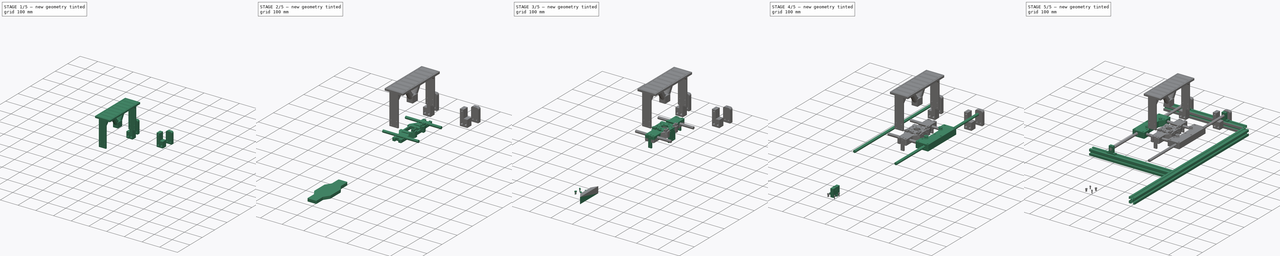
[diagram: build sequence overview — one tinted view per stage of 5, left to right]
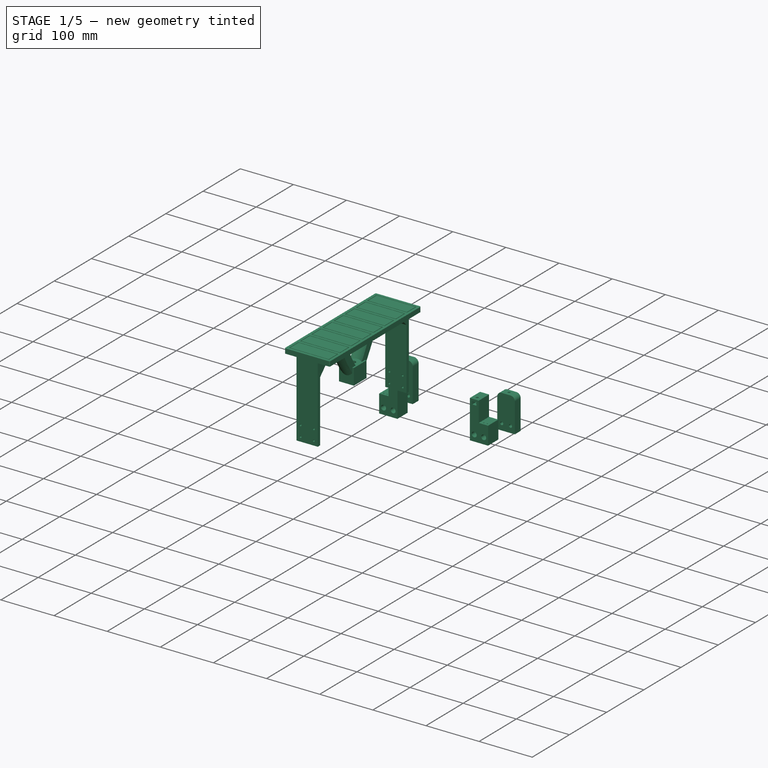
[diagram: stage 1 of 5 — iso view after this stage's code; geometry added in this stage tinted green]
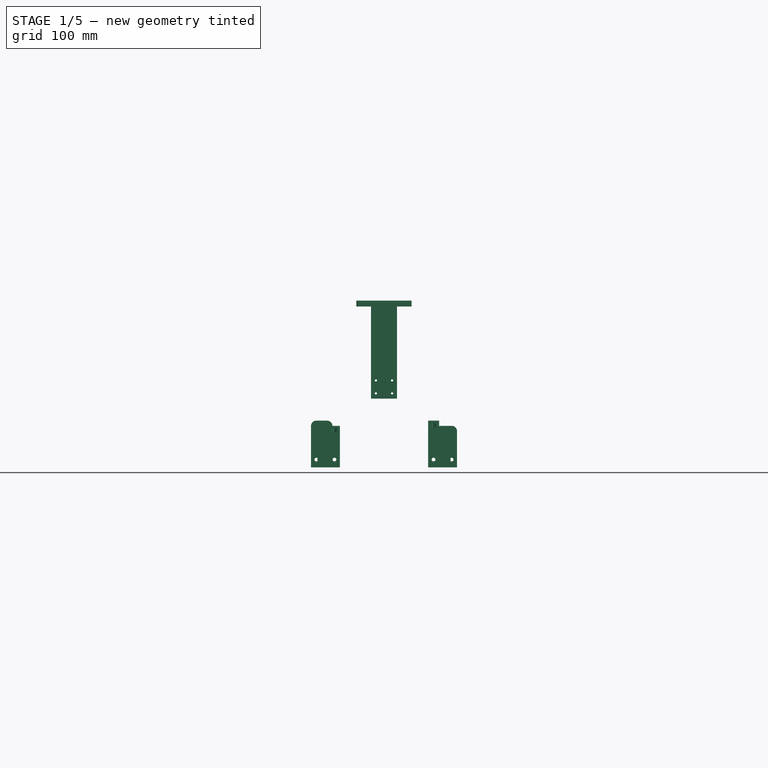
[diagram: stage 1 of 5 — front view after this stage's code; geometry added in this stage tinted green]
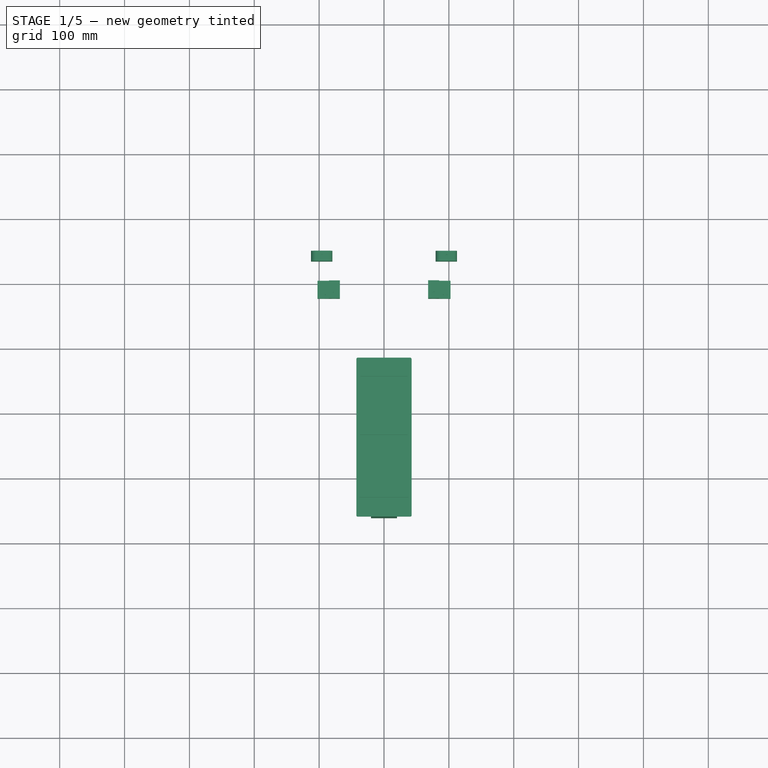
[diagram: stage 1 of 5 — top view after this stage's code; geometry added in this stage tinted green]
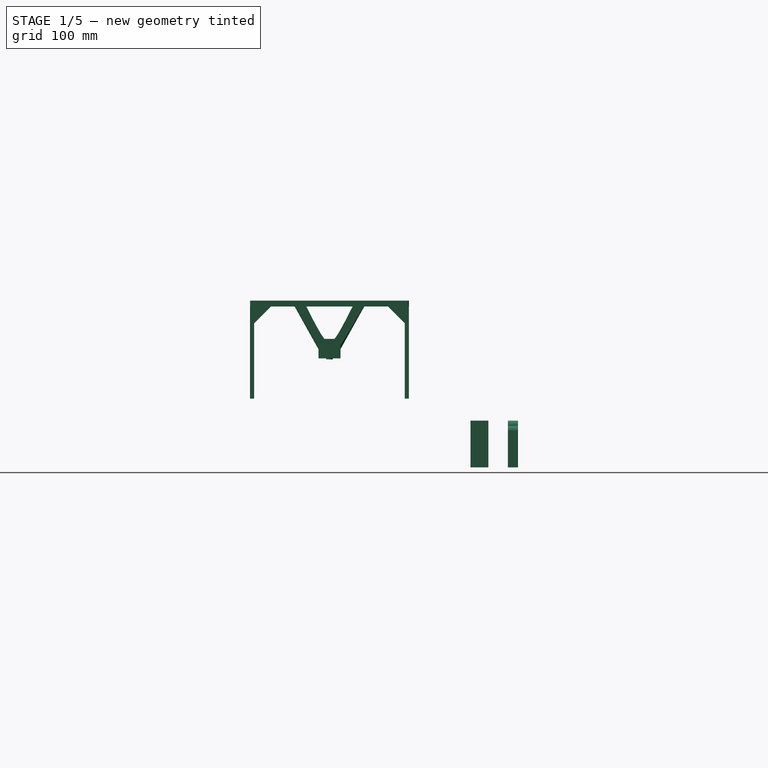
[diagram: stage 1 of 5 — right view after this stage's code; geometry added in this stage tinted green]
FCSTD DOCUMENT  (FreeCAD 0.16R6706 (Git))
Label: base_high
License: All rights reserved
LicenseURL: http://en.wikipedia.org/wiki/All_rights_reserved
objects: Part::Feature×63, Part::Prism×52, Part::FeaturePython×45, Part::Cylinder×45, Part::Extrusion×37, Part::MultiFuse×34, Part::Circle×28, Part::Cut×21, Part::Box×20, Part::Fuse×18, Part::Common×15, Part::Fillet×8, Part::Polygon×7, Part::Compound×4, Sketcher::SketchObject×2, Part::Chamfer×1
note: 400 computed .brp shape members not serialized (recipe doc carries the construction recipe); baked Part::Feature solids carry a one-line shape summary decoded from their .brp

FEATURE [Part::Feature] zflexcoupling
  Placement = pos=(0,560,84) rot=(0,0,1;0rad)
  shape: bbox 19 x 19 x 25 mm, 8 faces (baked)
FEATURE [Part::Feature] t8leadscrew
  shape: bbox 8 x 8 x 100 mm, 3 faces (baked)
FEATURE [Part::Polygon] T8NutHousing_box_sq
  Close = true
  Nodes = (4) [(-15,-17,-14),(15,-17,-14),(15,17,-14),(-15,17,-14)]
FEATURE [Part::Extrusion] T8NutHousing_box
  Base = -> T8NutHousing_box_sq
  Dir = (0,0,28)
  Placement = pos=(0,0,15) rot=(0,1,0;1.5708rad)
  Solid = true
FEATURE [Part::Circle] leadscr_hole_circ
  Angle0 = 0
  Angle1 = 360
  Placement = pos=(-16,0,0) rot=(0,1,0;1.5708rad)
  Radius = 5.3
FEATURE [Part::Extrusion] leadscr_hole
  Base = -> leadscr_hole_circ
  Dir = (31,0,0)
  Solid = true
FEATURE [Part::Circle] nutflange_hole_circ
  Angle0 = 0
  Angle1 = 360
  Placement = pos=(11.1,0,0) rot=(0,1,0;1.5708rad)
  Radius = 11.2
FEATURE [Part::Extrusion] nutflange_hole
  Base = -> nutflange_hole_circ
  Dir = (4.9,0,0)
  Solid = true
FEATURE [Part::Circle] boltflange_l_circ
  Angle0 = 0
  Angle1 = 360
  Placement = pos=(0.7,0,0) rot=(0,1,0;1.5708rad)
  Radius = 1.5
FEATURE [Part::Extrusion] boltflange_l
  Base = -> boltflange_l_circ
  Dir = (11.4,0,0)
  Placement = pos=(0,-8,0) rot=(0,0,1;0rad)
  Solid = true
FEATURE [Part::Circle] boltflange_r_circ
  Angle0 = 0
  Angle1 = 360
  Placement = pos=(0.7,0,0) rot=(0,1,0;1.5708rad)
  Radius = 1.5
FEATURE [Part::Extrusion] boltflange_r
  Base = -> boltflange_r_circ
  Dir = (11.4,0,0)
  Placement = pos=(0,8,0) rot=(0,0,1;0rad)
  Solid = true
FEATURE [Part::Circle] boltface_1_circ
  Angle0 = 0
  Angle1 = 360
  Placement = pos=(0,0,-15) rot=(0,0,1;0rad)
  Radius = 2
FEATURE [Part::Extrusion] boltface_1
  Base = -> boltface_1_circ
  Dir = (0,0,8.4)
  Placement = pos=(-9,-12,0) rot=(0,0,1;0rad)
  Solid = true
FEATURE [Part::Circle] boltface_2_circ
  Angle0 = 0
  Angle1 = 360
  Placement = pos=(0,0,-15) rot=(0,0,1;0rad)
  Radius = 2
FEATURE [Part::Extrusion] boltface_2
  Base = -> boltface_2_circ
  Dir = (0,0,8.4)
  Placement = pos=(9,-12,0) rot=(0,0,1;0rad)
  Solid = true
FEATURE [Part::Circle] boltface_3_circ
  Angle0 = 0
  Angle1 = 360
  Placement = pos=(0,0,-15) rot=(0,0,1;0rad)
  Radius = 2
FEATURE [Part::Extrusion] boltface_3
  Base = -> boltface_3_circ
  Dir = (0,0,8.4)
  Placement = pos=(-9,12,0) rot=(0,0,1;0rad)
  Solid = true
FEATURE [Part::Circle] boltface_4_circ
  Angle0 = 0
  Angle1 = 360
  Placement = pos=(0,0,-15) rot=(0,0,1;0rad)
  Radius = 2
FEATURE [Part::Extrusion] boltface_4
  Base = -> boltface_4_circ
  Dir = (0,0,8.4)
  Placement = pos=(9,12,0) rot=(0,0,1;0rad)
  Solid = true
FEATURE [Part::MultiFuse] nuthouse_holes
  Placement = pos=(0,0,15) rot=(0,1,0;1.5708rad)
  Shapes = -> [leadscr_hole,nutflange_hole,boltflange_l,boltflange_r,boltface_1,boltface_2,boltface_3,boltface_4]
FEATURE [Part::Cut] t8nuthouse
  Base = -> T8NutHousing_box
  Placement = pos=(0,560,171) rot=(0,0,1;0rad)
  Tool = -> nuthouse_holes
FEATURE [Part::Circle] flange_cyl_circ
  Angle0 = 0
  Angle1 = 360
  Placement = pos=(0,0,-3.5) rot=(0,0,1;0rad)
  Radius = 11
FEATURE [Part::Extrusion] flange_cyl
  Base = -> flange_cyl_circ
  Dir = (0,0,3.5)
  Solid = true
FEATURE [Part::Circle] shaft_cyl_circ
  Angle0 = 0
  Angle1 = 360
  Placement = pos=(0,0,-13.5) rot=(0,0,1;0rad)
  Radius = 5.1
FEATURE [Part::Extrusion] shaft_cyl
  Base = -> shaft_cyl_circ
  Dir = (0,0,15)
  Solid = true
FEATURE [Part::Circle] leadscrew_hole_circ
  Angle0 = 0
  Angle1 = 360
  Placement = pos=(0,0,-14.5) rot=(0,0,1;0rad)
  Radius = 4
FEATURE [Part::Extrusion] leadscrew_hole
  Base = -> leadscrew_hole_circ
  Dir = (0,0,17)
  Solid = true
FEATURE [Part::Circle] flangebolt_hole1_circ
  Angle0 = 0
  Angle1 = 360
  Placement = pos=(0,0,-4.5) rot=(0,0,1;0rad)
  Radius = 1.75
FEATURE [Part::Extrusion] flangebolt_hole1
  Base = -> flangebolt_hole1_circ
  Dir = (0,0,5.5)
  Placement = pos=(8,0,0) rot=(0,0,1;0rad)
  Solid = true
FEATURE [Part::Circle] flangebolt_hole2_circ
  Angle0 = 0
  Angle1 = 360
  Placement = pos=(0,0,-4.5) rot=(0,0,1;0rad)
  Radius = 1.75
FEATURE [Part::Extrusion] flangebolt_hole2
  Base = -> flangebolt_hole2_circ
  Dir = (0,0,5.5)
  Placement = pos=(-8,0,0) rot=(0,0,1;0rad)
  Solid = true
FEATURE [Part::Circle] flangebolt_hole3_circ
  Angle0 = 0
  Angle1 = 360
  Placement = pos=(0,0,-4.5) rot=(0,0,1;0rad)
  Radius = 1.75
FEATURE [Part::Extrusion] flangebolt_hole3
  Base = -> flangebolt_hole3_circ
  Dir = (0,0,5.5)
  Placement = pos=(0,8,0) rot=(0,0,1;0rad)
  Solid = true
FEATURE [Part::Circle] flangebolt_hole4_circ
  Angle0 = 0
  Angle1 = 360
  Placement = pos=(0,0,-4.5) rot=(0,0,1;0rad)
  Radius = 1.75
FEATURE [Part::Extrusion] flangebolt_hole4
  Base = -> flangebolt_hole4_circ
  Dir = (0,0,5.5)
  Placement = pos=(0,-8,0) rot=(0,0,1;0rad)
  Solid = true
FEATURE [Part::MultiFuse] nut_holes
  Placement = pos=(0,0,0) rot=(1,0,0;3.14159rad)
  Shapes = -> [leadscrew_hole,flangebolt_hole1,flangebolt_hole2,flangebolt_hole3,flangebolt_hole4]
FEATURE [Part::Fuse] nut_cyls
  Base = -> flange_cyl
  Placement = pos=(0,0,0) rot=(1,0,0;3.14159rad)
  Tool = -> shaft_cyl
FEATURE [Part::Cut] t8nut
  Base = -> nut_cyls
  Placement = pos=(0,560,171) rot=(0,0,1;0rad)
  Tool = -> nut_holes
FEATURE [Part::Feature] lg_nx
  Placement = pos=(-34.83,560,11.5) rot=(0,0,1;0rad)
  shape: bbox 9.5 x 42 x 136 mm, 36 faces (baked)
FEATURE [Part::Feature] lg_nx_block
  Placement = pos=(-34.83,560,11.5) rot=(0,0,1;0rad)
  shape: bbox 13 x 74 x 55 mm, 34 faces (baked)
FEATURE [Part::Feature] lg_y
  Placement = pos=(0,659.96,5.5) rot=(0,0,1;0rad)
  shape: bbox 15 x 9.5 x 150 mm, 24 faces (baked)
FEATURE [Part::Feature] lg_y_block
  Placement = pos=(0,659.96,5.5) rot=(0,0,1;0rad)
  shape: bbox 32 x 12 x 42 mm, 34 faces (baked)
FEATURE [Part::Feature] lg_ny
  Placement = pos=(0,460.04,5.5) rot=(0,0,1;0rad)
  shape: bbox 15 x 9.5 x 150 mm, 24 faces (baked)
FEATURE [Part::Feature] lg_ny_block
  Placement = pos=(0,460.04,5.5) rot=(0,0,1;0rad)
  shape: bbox 32 x 12 x 42 mm, 34 faces (baked)
FEATURE [Part::Feature] portabase_box
  shape: bbox 85 x 245 x 4 mm, 10 faces (baked)
FEATURE [Part::Feature] porta_0 .. porta_7  x8 (patterned run collapsed; names and placements below)
  shape: bbox 75 x 25 x 2 mm, 10 faces (baked)
  placements: 8 in arithmetic series — first pos=(0,-117.5,85.5) rot=(0,0,1;0rad), step (0,30,0), last pos=(0,92.5,85.5) rot=(0,0,1;0rad)
FEATURE [Part::MultiFuse] portaholes
  Shapes = -> [porta_0,porta_1,porta_2,porta_3,porta_4,porta_5,porta_6,porta_7]
FEATURE [Part::Cut] portabase
  Base = -> portabase_box
  Tool = -> portaholes
FEATURE [Part::Feature] portabase_support0
  shape: bbox 114.1 x 114.1 x 82.5 mm, 13 faces (baked)
FEATURE [Part::Cylinder] nutboltthru2_shank
  Angle = 360
  Height = 29.1667
  Placement = pos=(0,0,-1) rot=(0,0,1;0rad)
  Radius = 1.8
FEATURE [Part::Cylinder] nutboltthru2_head
  Angle = 360
  Height = 14.1667
  Placement = pos=(0,0,14) rot=(0,0,1;0rad)
  Radius = 2.88333
FEATURE [Part::Prism] nutboltthru2_sup1
  Circumradius = 3.6
  Height = 13.4667
  Placement = pos=(0,0,13.7) rot=(0,0,1;0.523599rad)
  Polygon = 3
FEATURE [Part::Cylinder] nutboltthru2_sup1away
  Angle = 360
  Height = 13.4667
  Placement = pos=(0,0,13.7) rot=(0,0,1;0rad)
  Radius = 2.88333
FEATURE [Part::Common] sup1cut009
  Base = -> nutboltthru2_sup1
  Tool = -> nutboltthru2_sup1away
FEATURE [Part::Prism] nutboltthru2_sup2
  Circumradius = 2.07
  Height = 13.7667
  Placement = pos=(0,0,13.4) rot=(0,0,1;0rad)
  Polygon = 6
FEATURE [Part::MultiFuse] nutboltthru2
  Placement = pos=(0,-8,0) rot=(0,0,1;0rad)
  Shapes = -> [nutboltthru2_shank,nutboltthru2_head,sup1cut009,nutboltthru2_sup2]
FEATURE [Part::Cylinder] nutboltthru3_shank
  Angle = 360
  Height = 29.1667
  Placement = pos=(0,0,-1) rot=(0,0,1;0rad)
  Radius = 1.8
FEATURE [Part::Cylinder] nutboltthru3_head
  Angle = 360
  Height = 14.1667
  Placement = pos=(0,0,14) rot=(0,0,1;0rad)
  Radius = 2.88333
FEATURE [Part::Prism] nutboltthru3_sup1
  Circumradius = 3.6
  Height = 13.4667
  Placement = pos=(0,0,13.7) rot=(0,0,1;0.523599rad)
  Polygon = 3
FEATURE [Part::Cylinder] nutboltthru3_sup1away
  Angle = 360
  Height = 13.4667
  Placement = pos=(0,0,13.7) rot=(0,0,1;0rad)
  Radius = 2.88333
FEATURE [Part::Common] sup1cut010
  Base = -> nutboltthru3_sup1
  Tool = -> nutboltthru3_sup1away
FEATURE [Part::Prism] nutboltthru3_sup2
  Circumradius = 2.07
  Height = 13.7667
  Placement = pos=(0,0,13.4) rot=(0,0,1;0rad)
  Polygon = 6
FEATURE [Part::MultiFuse] nutboltthru3
  Placement = pos=(0,8,0) rot=(0,0,1;0rad)
  Shapes = -> [nutboltthru3_shank,nutboltthru3_head,sup1cut010,nutboltthru3_sup2]
FEATURE [Part::MultiFuse] portabase_nutthru
  Shapes = -> [nutboltthru2,nutboltthru3]
FEATURE [Part::Cut] portabase_support
  Base = -> portabase_support0
  Tool = -> portabase_nutthru
FEATURE [Part::Feature] lgytabs
  shape: bbox 40 x 245 x 148 mm, 20 faces, 2 solids (baked)
FEATURE [Part::MultiFuse] portabase_tabs
  Shapes = -> [portabase,lgytabs]
FEATURE [Part::Chamfer] portabase_chmf
  Base = -> portabase_tabs
  Edges = 4 edges r=31: [Edge7,Edge14,Edge93,Edge167]
FEATURE [Part::Feature] portabase_rfm
  Placement = pos=(0,0,76.5) rot=(0,0,1;0rad)
  shape: bbox 85 x 245 x 6 mm, 18 faces (baked)
FEATURE [Part::MultiFuse] portabase_tot
  Placement = pos=(0,560,174.5) rot=(0,0,1;0rad)
  Shapes = -> [portabase_chmf,portabase_support,portabase_rfm]
FEATURE [Part::Feature] idlpulhold_lowends_nx_aux
  shape: bbox 34.36 x 27.5 x 64 mm, 20 faces (baked)
FEATURE [Part::Prism] idlpulhold_lowends_nx_nuthole_nut
  Circumradius = 4.43
  Height = 5.76
  Placement = pos=(0,0,0) rot=(-0.57735,0.57735,0.57735;2.0944rad)
  Polygon = 6
FEATURE [Part::Box] idlpulhold_lowends_nx_nuthole_hole
  Height = 9.23
  Length = 7.67276
  Placement = pos=(-3.83638,0,0) rot=(0,0,1;0rad)
  Width = 5.76
FEATURE [Part::Fuse] idlpulhold_lowends_nx_nuthole
  Base = -> idlpulhold_lowends_nx_nuthole_nut
  Placement = pos=(0,19.27,33) rot=(-1,0,0;1.5708rad)
  Tool = -> idlpulhold_lowends_nx_nuthole_hole
FEATURE [Part::Cut] idlpulhold_lowends_nx
  Base = -> idlpulhold_lowends_nx_aux
  Placement = pos=(-76.55,805,30) rot=(0,0,1;3.14159rad)
  Tool = -> idlpulhold_lowends_nx_nuthole
FEATURE [Part::Feature] idlpulhold_highends_x_aux
  shape: bbox 34.36 x 27.5 x 72 mm, 20 faces (baked)
FEATURE [Part::Prism] idlpulhold_highends_x_nuthole_nut
  Circumradius = 4.43
  Height = 5.76
  Placement = pos=(0,0,0) rot=(-0.57735,0.57735,0.57735;2.0944rad)
  Polygon = 6
FEATURE [Part::Box] idlpulhold_highends_x_nuthole_hole
  Height = 9.23
  Length = 7.67276
  Placement = pos=(-3.83638,0,0) rot=(0,0,1;0rad)
  Width = 5.76
FEATURE [Part::Fuse] idlpulhold_highends_x_nuthole
  Base = -> idlpulhold_highends_x_nuthole_nut
  Placement = pos=(0,19.27,41) rot=(-1,0,0;1.5708rad)
  Tool = -> idlpulhold_highends_x_nuthole_hole
FEATURE [Part::Cut] idlpulhold_highends_x
  Base = -> idlpulhold_highends_x_aux
  Placement = pos=(76.55,805,30) rot=(0,0,1;3.14159rad)
  Tool = -> idlpulhold_highends_x_nuthole
FEATURE [Part::Feature] idlpulhold_low_x_aux
  shape: bbox 33 x 15.66 x 64 mm, 14 faces (baked)
FEATURE [Part::Fillet] idlpulhold_low_x_chmf
  Base = -> idlpulhold_low_x_aux
  Edges = 2 edges r=8.07: [Edge9,Edge12]
FEATURE [Part::Prism] idlpulhold_low_x_nuthole_nut
  Circumradius = 4.43
  Height = 5.76
  Placement = pos=(0,0,0) rot=(-0.57735,0.57735,0.57735;2.0944rad)
  Polygon = 6
FEATURE [Part::Box] idlpulhold_low_x_nuthole_hole
  Height = 9.23
  Length = 7.67276
  Placement = pos=(-3.83638,0,0) rot=(0,0,1;0rad)
  Width = 5.76
FEATURE [Part::Fuse] idlpulhold_low_x_nuthole
  Base = -> idlpulhold_low_x_nuthole_nut
  Placement = pos=(0,7.43,33) rot=(-1,0,0;1.5708rad)
  Tool = -> idlpulhold_low_x_nuthole_hole
FEATURE [Part::Cut] idlpulhold_low_x
  Base = -> idlpulhold_low_x_chmf
  Placement = pos=(96.05,835,30) rot=(0,0,1;0rad)
  Tool = -> idlpulhold_low_x_nuthole
FEATURE [Part::Feature] idlpulhold_high_nx_aux
  shape: bbox 33 x 15.66 x 72 mm, 14 faces (baked)
FEATURE [Part::Fillet] idlpulhold_high_nx_chmf
  Base = -> idlpulhold_high_nx_aux
  Edges = 2 edges r=8.07: [Edge9,Edge12]
FEATURE [Part::Prism] idlpulhold_high_nx_nuthole_nut
  Circumradius = 4.43
  Height = 5.76
  Placement = pos=(0,0,0) rot=(-0.57735,0.57735,0.57735;2.0944rad)
  Polygon = 6
FEATURE [Part::Box] idlpulhold_high_nx_nuthole_hole
  Height = 9.23
  Length = 7.67276
  Placement = pos=(-3.83638,0,0) rot=(0,0,1;0rad)
  Width = 5.76
FEATURE [Part::Fuse] idlpulhold_high_nx_nuthole
  Base = -> idlpulhold_high_nx_nuthole_nut
  Placement = pos=(0,7.43,41) rot=(-1,0,0;1.5708rad)
  Tool = -> idlpulhold_high_nx_nuthole_hole
FEATURE [Part::Cut] idlpulhold_high_nx
  Base = -> idlpulhold_high_nx_chmf
  Placement = pos=(-96.05,835,30) rot=(0,0,1;0rad)
  Tool = -> idlpulhold_high_nx_nuthole
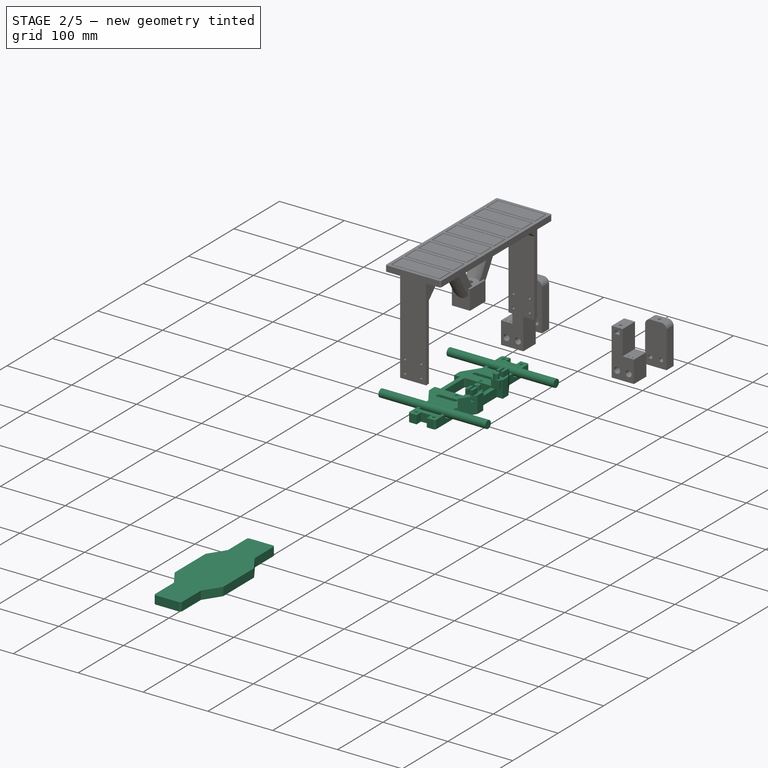
[diagram: stage 2 of 5 — iso view after this stage's code; geometry added in this stage tinted green]
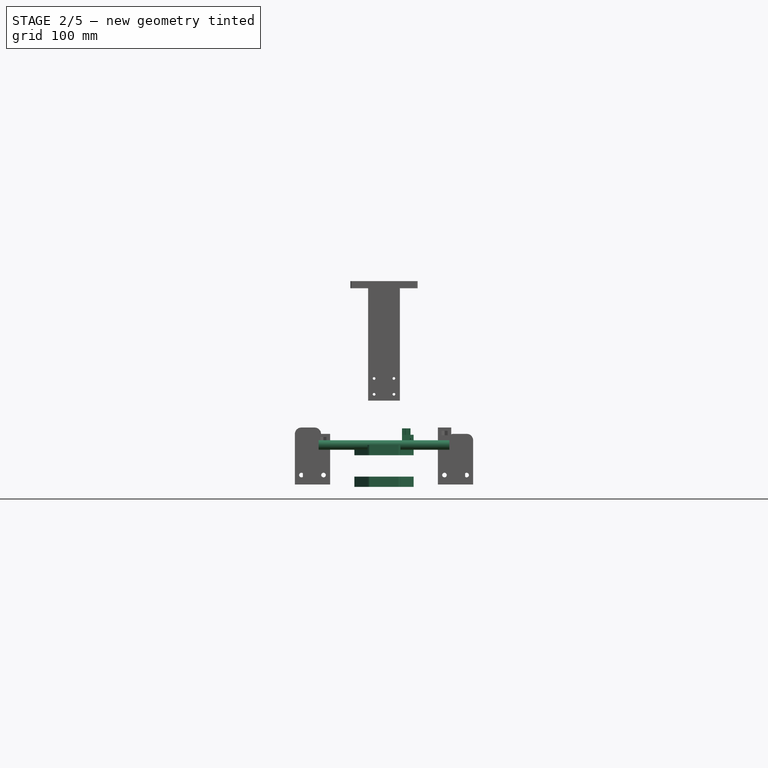
[diagram: stage 2 of 5 — front view after this stage's code; geometry added in this stage tinted green]
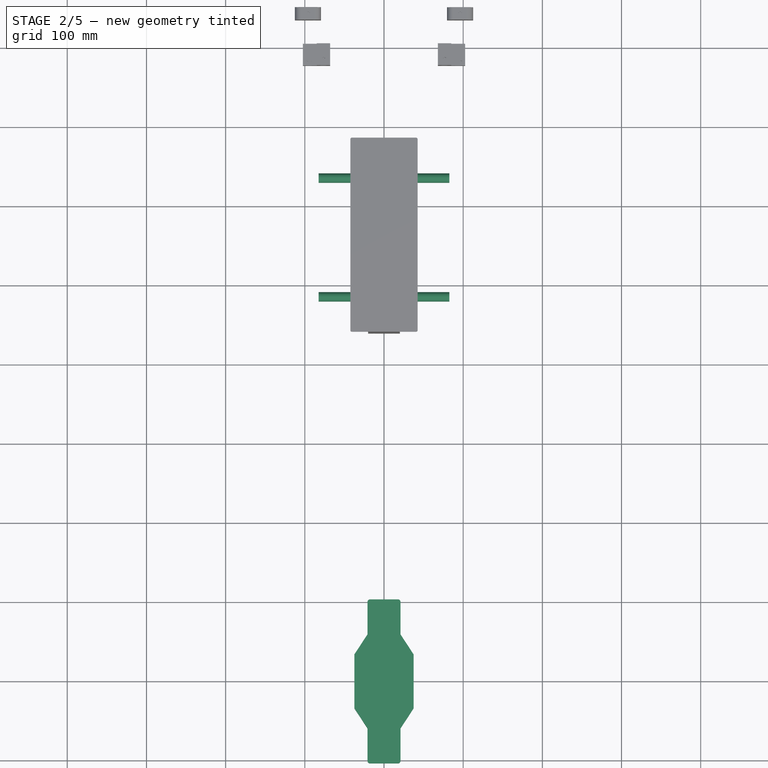
[diagram: stage 2 of 5 — top view after this stage's code; geometry added in this stage tinted green]
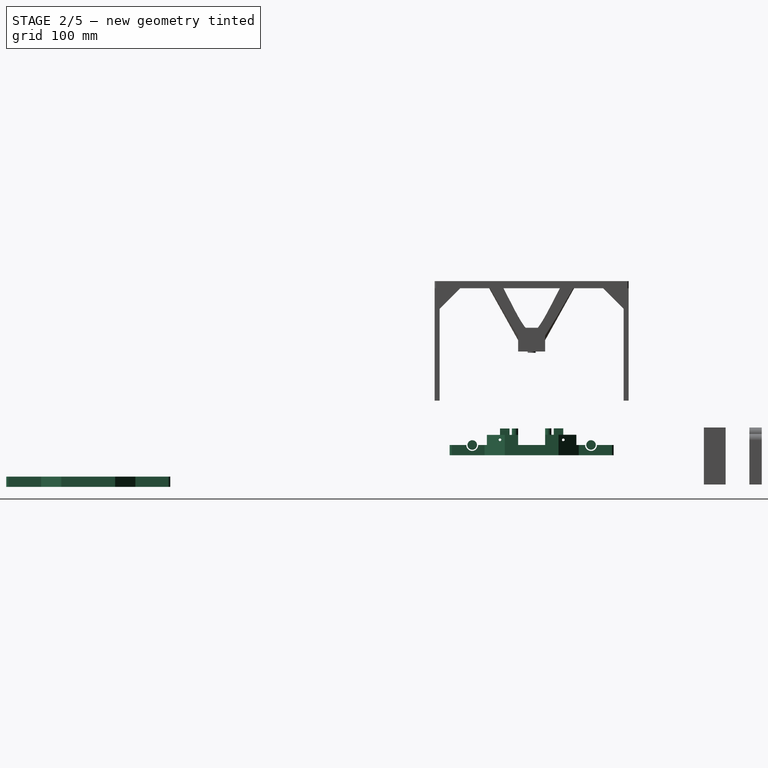
[diagram: stage 2 of 5 — right view after this stage's code; geometry added in this stage tinted green]
FEATURE [Part::Polygon] topcenslid_box_sq
  Close = true
  Nodes = (4) [(-20.78,-103.56,0),(20.78,-103.56,0),(20.78,103.56,0),(-20.78,103.56,0)]
FEATURE [Part::Extrusion] topcenslid_box
  Base = -> topcenslid_box_sq
  Dir = (0,0,13)
  Solid = true
FEATURE [Part::Polygon] botcenslid_box_sq
  Close = true
  Nodes = (4) [(-20.78,-103.56,0),(20.78,-103.56,0),(20.78,103.56,0),(-20.78,103.56,0)]
FEATURE [Part::Extrusion] botcenslid_box
  Base = -> botcenslid_box_sq
  Dir = (0,0,13)
  Placement = pos=(0,0,-13) rot=(0,0,1;0rad)
  Solid = true
FEATURE [Part::Fillet] topcenslid_fllt
  Base = -> topcenslid_box
  Edges = 4 edges r=3: [Edge1,Edge2,Edge5,Edge8]
FEATURE [Part::Fillet] botcenslid_fllt
  Base = -> botcenslid_box
  Edges = 4 edges r=3: [Edge1,Edge2,Edge5,Edge8]
FEATURE [Part::Feature] topcenslidedent
  shape: bbox 74.86 x 122 x 13 mm, 14 faces (baked)
FEATURE [Part::Feature] botcenslidedent
  shape: bbox 74.86 x 122 x 13 mm, 14 faces (baked)
FEATURE [Part::Fuse] topcenslid_dent
  Base = -> topcenslid_fllt
  Tool = -> topcenslidedent
FEATURE [Part::Fuse] botcenslid_dent
  Base = -> botcenslid_fllt
  Tool = -> botcenslidedent
FEATURE [Part::Circle] toprod_circ
  Angle0 = 0
  Angle1 = 360
  Placement = pos=(-21.78,0,0) rot=(0,1,0;1.5708rad)
  Radius = 7.5
FEATURE [Part::Extrusion] toprod
  Base = -> toprod_circ
  Dir = (43.56,0,0)
  Placement = pos=(0,75,0) rot=(0,0,1;0rad)
  Solid = true
FEATURE [Part::Circle] botrod_circ
  Angle0 = 0
  Angle1 = 360
  Placement = pos=(-21.78,0,0) rot=(0,1,0;1.5708rad)
  Radius = 7.5
FEATURE [Part::Extrusion] botrod
  Base = -> botrod_circ
  Dir = (43.56,0,0)
  Placement = pos=(0,-75,0) rot=(0,0,1;0rad)
  Solid = true
FEATURE [Part::Circle] cen_lm12uu_0_cont_circ
  Angle0 = 0
  Angle1 = 360
  Placement = pos=(-16.5,0,0) rot=(0,1,0;1.5708rad)
  Radius = 11.35
FEATURE [Part::Extrusion] cen_lm12uu_0_cont
  Base = -> cen_lm12uu_0_cont_circ
  Dir = (33,0,0)
  Placement = pos=(0,75,0) rot=(0,0,1;0rad)
  Solid = true
FEATURE [Part::FeaturePython] Clone029  label="cen_lm12uu_0_cont001"  # Draft clone (typed FeaturePython)
  Objects = -> [cen_lm12uu_0_cont]
  Placement = pos=(0,-75,0) rot=(0,0,1;0rad)
  Scale = (1,1,1)
FEATURE [Part::Polygon] bclten0_baseof_plane_yz
  Close = true
  Nodes = (12) [(0,2.30833,0),(0,2.30833,2.4375),(0,-0.4,5.14583),(0,-0.4,7.85417),(0,2.30833,10.5625),(0,2.30833,13),(0,13.9083,13),(0,13.9083,10.5625),+4 more]
FEATURE [Part::Extrusion] bclten0_baseof
  Base = -> bclten0_baseof_plane_yz
  Dir = (49.0978,0,0)
  Placement = pos=(11.6678,48.1083,0) rot=(0,0,1;3.14159rad)
  Solid = true
FEATURE [Part::Prism] bccr_nuthole0_nut
  Circumradius = 3.605
  Height = 5.04
  Placement = pos=(0,0,0) rot=(0,1,0;1.5708rad)
  Polygon = 6
FEATURE [Part::Box] bccr_nuthole0_hole
  Height = 7.9
  Length = 5.04
  Placement = pos=(0,-3.12193,0) rot=(0,0,1;0rad)
  Width = 6.24386
FEATURE [Part::Fuse] bccr_nuthole0
  Base = -> bccr_nuthole0_nut
  Placement = pos=(14.6678,40,6.5) rot=(0,0,1;0rad)
  Tool = -> bccr_nuthole0_hole
FEATURE [Part::Feature] bcl_leads0
  shape: bbox 26.76 x 3.4 x 3.4 mm, 3 faces (baked)
FEATURE [Part::Feature] boxb0
  shape: bbox 30.45 x 6.244 x 15 mm, 10 faces (baked)
FEATURE [Part::MultiFuse] beltholes_t
  Shapes = -> [bccr_nuthole0,bclten0_baseof,bcl_leads0,boxb0]
FEATURE [Part::FeaturePython] Clone031  label="beltholes_b"  # Draft clone (typed FeaturePython)
  Objects = -> [beltholes_t]
  Placement = pos=(0,-80,0) rot=(0,0,1;0rad)
  Scale = (1,1,1)
FEATURE [Part::Feature] nema17_ST4209S1006B
  Placement = pos=(0,560,53) rot=(0,0,1;0rad)
  shape: bbox 42.3 x 42.3 x 67.5 mm, 28 faces (baked)
FEATURE [Part::Feature] contmotors
  shape: bbox 43.9 x 43.9 x 67.5 mm, 368 faces (baked)
FEATURE [Part::Cylinder] bhole_notorstf0_shank
  Angle = 360
  Height = 10.5
  Placement = pos=(0,0,-1) rot=(0,0,1;0rad)
  Radius = 1.65
FEATURE [Part::Cylinder] bhole_notorstf0_head
  Angle = 360
  Height = 4.3
  Placement = pos=(0,0,5.2) rot=(0,0,1;0rad)
  Radius = 2.9
FEATURE [Part::Prism] bhole_notorstf0_sup1
  Circumradius = 3.3
  Height = 3.6
  Placement = pos=(0,0,4.9) rot=(0,0,1;0.523599rad)
  Polygon = 3
FEATURE [Part::Cylinder] bhole_notorstf0_sup1away
  Angle = 360
  Height = 3.6
  Placement = pos=(0,0,4.9) rot=(0,0,1;0rad)
  Radius = 2.9
FEATURE [Part::Common] sup1cut006
  Base = -> bhole_notorstf0_sup1
  Tool = -> bhole_notorstf0_sup1away
FEATURE [Part::Prism] bhole_notorstf0_sup2
  Circumradius = 1.8975
  Height = 3.9
  Placement = pos=(0,0,4.6) rot=(0,0,1;0rad)
  Polygon = 6
FEATURE [Part::MultiFuse] bhole_notorstf0
  Placement = pos=(-17.05,0,6.5) rot=(0,0,1;0rad)
  Shapes = -> [bhole_notorstf0_shank,bhole_notorstf0_head,sup1cut006,bhole_notorstf0_sup2]
FEATURE [Part::FeaturePython] Clone038  label="bhole_notorstf1"  # Draft clone (typed FeaturePython)
  Objects = -> [bhole_notorstf0]
  Placement = pos=(17.05,0,6.5) rot=(0,0,1;0rad)
  Scale = (1,1,1)
FEATURE [Part::Fuse] bholes_motorstf
  Base = -> bhole_notorstf0
  Tool = -> Clone038
FEATURE [Part::Cylinder] boltmid0_bolt_shank
  Angle = 360
  Height = 28
  Placement = pos=(0,0,-1) rot=(0,0,1;0rad)
  Radius = 2.15
FEATURE [Part::Cylinder] boltmid0_bolt_head
  Angle = 360
  Height = 5.3
  Placement = pos=(0,0,-1) rot=(0,0,1;0rad)
  Radius = 3.65
FEATURE [Part::Prism] boltmid0_bolt_sup1
  Circumradius = 4.3
  Height = 4.6
  Placement = pos=(0,0,0) rot=(0,0,1;0.523599rad)
  Polygon = 3
FEATURE [Part::Cylinder] boltmid0_bolt_sup1away
  Angle = 360
  Height = 4.6
  Radius = 3.65
FEATURE [Part::Common] sup1cut007
  Base = -> boltmid0_bolt_sup1
  Tool = -> boltmid0_bolt_sup1away
FEATURE [Part::Prism] boltmid0_bolt_sup2
  Circumradius = 2.4725
  Height = 4.9
  Polygon = 6
FEATURE [Part::MultiFuse] boltmid0_bolt
  Shapes = -> [boltmid0_bolt_shank,boltmid0_bolt_head,sup1cut007,boltmid0_bolt_sup2]
FEATURE [Part::Prism] boltmid0_nut
  Circumradius = 4.28
  Height = 4.5
  Placement = pos=(0,0,22.5) rot=(0,0,1;0rad)
  Polygon = 6
FEATURE [Part::Prism] boltmid0_nutsup1
  Circumradius = 4.3
  Height = 3.8
  Placement = pos=(0,0,22.2) rot=(0,0,1;0.523599rad)
  Polygon = 3
FEATURE [Part::Prism] boltmid0_supnut1away
  Circumradius = 4.28
  Height = 3.8
  Placement = pos=(0,0,22.2) rot=(0,0,1;0rad)
  Polygon = 6
FEATURE [Part::Common] supnut1_cut002
  Base = -> boltmid0_nutsup1
  Tool = -> boltmid0_supnut1away
FEATURE [Part::Prism] boltmid0_supnut2
  Circumradius = 2.4725
  Height = 4.1
  Placement = pos=(0,0,21.9) rot=(0,0,1;0rad)
  Polygon = 6
FEATURE [Part::MultiFuse] boltnut002
  Placement = pos=(0,-26.5208,-13) rot=(0,0,1;0rad)
  Shapes = -> [boltmid0_bolt,boltmid0_nut,supnut1_cut002,boltmid0_supnut2]
FEATURE [Part::FeaturePython] Clone039  label="boltmid1"  # Draft clone (typed FeaturePython)
  Objects = -> [boltnut002]
  Placement = pos=(0,26.5208,-13) rot=(0,0,1;0rad)
  Scale = (1,1,1)
FEATURE [Part::Cylinder] boltend00_bolt_shank
  Angle = 360
  Height = 28
  Placement = pos=(0,0,-1) rot=(0,0,1;0rad)
  Radius = 2.15
FEATURE [Part::Cylinder] boltend00_bolt_head
  Angle = 360
  Height = 5.3
  Placement = pos=(0,0,21.7) rot=(0,0,1;0rad)
  Radius = 3.65
FEATURE [Part::Prism] boltend00_bolt_sup1
  Circumradius = 4.3
  Height = 4.6
  Placement = pos=(0,0,21.4) rot=(0,0,1;0.523599rad)
  Polygon = 3
FEATURE [Part::Cylinder] boltend00_bolt_sup1away
  Angle = 360
  Height = 4.6
  Placement = pos=(0,0,21.4) rot=(0,0,1;0rad)
  Radius = 3.65
FEATURE [Part::Common] sup1cut008
  Base = -> boltend00_bolt_sup1
  Tool = -> boltend00_bolt_sup1away
FEATURE [Part::Prism] boltend00_bolt_sup2
  Circumradius = 2.4725
  Height = 4.9
  Placement = pos=(0,0,21.1) rot=(0,0,1;0rad)
  Polygon = 6
FEATURE [Part::MultiFuse] boltend00_bolt
  Shapes = -> [boltend00_bolt_shank,boltend00_bolt_head,sup1cut008,boltend00_bolt_sup2]
FEATURE [Part::Prism] boltend00_nut
  Circumradius = 4.28
  Height = 4.5
  Placement = pos=(0,0,-1) rot=(0,0,1;0rad)
  Polygon = 6
FEATURE [Part::Prism] boltend00_nutsup1
  Circumradius = 4.3
  Height = 3.8
  Placement = pos=(0,0,0) rot=(0,0,1;0.523599rad)
  Polygon = 3
FEATURE [Part::Prism] boltend00_supnut1away
  Circumradius = 4.28
  Height = 3.8
  Polygon = 6
FEATURE [Part::Common] supnut1_cut003
  Base = -> boltend00_nutsup1
  Tool = -> boltend00_supnut1away
FEATURE [Part::Prism] boltend00_supnut2
  Circumradius = 2.4725
  Height = 4.1
  Polygon = 6
FEATURE [Part::MultiFuse] boltnut003
  Placement = pos=(-13.5,-96.28,-13) rot=(0,0,1;0rad)
  Shapes = -> [boltend00_bolt,boltend00_nut,supnut1_cut003,boltend00_supnut2]
FEATURE [Part::FeaturePython] Clone040  label="boltend10"  # Draft clone (typed FeaturePython)
  Objects = -> [boltnut003]
  Placement = pos=(13.5,-96.28,-13) rot=(0,0,1;0rad)
  Scale = (1,1,1)
FEATURE [Part::FeaturePython] Clone041  label="boltend01"  # Draft clone (typed FeaturePython)
  Objects = -> [boltnut003]
  Placement = pos=(-13.5,96.28,-13) rot=(0,0,1;0rad)
  Scale = (1,1,1)
FEATURE [Part::FeaturePython] Clone042  label="boltend11"  # Draft clone (typed FeaturePython)
  Objects = -> [Clone041]
  Placement = pos=(13.5,96.28,-13) rot=(0,0,1;0rad)
  Scale = (1,1,1)
FEATURE [Part::MultiFuse] censlid_botholes
  Shapes = -> [toprod,botrod,cen_lm12uu_0_cont,Clone029,beltholes_t,Clone031,contmotors,bholes_motorstf,boltnut002,Clone039,boltnut003,Clone040,Clone041,Clone042,lg_hole_nx,lg_hole_x,lgy_hole_ny,lgy_hole_y,lgsuphole_nx,lgsuphole_x,lgysuphole_ny,lgysuphole_y]
FEATURE [Part::MultiFuse] central_slider_bot_cl
  Shapes = -> [botcenslid_dent,fbclt,fbclb]
FEATURE [Part::Cut] central_slider_bot
  Base = -> central_slider_bot_cl
  Placement = pos=(0,560,53) rot=(0,0,1;0rad)
  Tool = -> censlid_botholes
FEATURE [Part::Circle] rod_x_f_circ
  Angle0 = 0
  Angle1 = 360
  Placement = pos=(-82.5,0,0) rot=(0,1,0;1.5708rad)
  Radius = 6
FEATURE [Part::Extrusion] rod_x_f
  Base = -> rod_x_f_circ
  Dir = (165,0,0)
  Placement = pos=(0,485,53) rot=(0,0,1;0rad)
  Solid = true
FEATURE [Part::Circle] rod_x_f_circ001
  Angle0 = 0
  Angle1 = 360
  Placement = pos=(-82.5,0,0) rot=(0,1,0;1.5708rad)
  Radius = 6
FEATURE [Part::Extrusion] rod_x_f001
  Base = -> rod_x_f_circ001
  Dir = (165,0,0)
  Placement = pos=(0,635,53) rot=(0,0,1;0rad)
  Solid = true
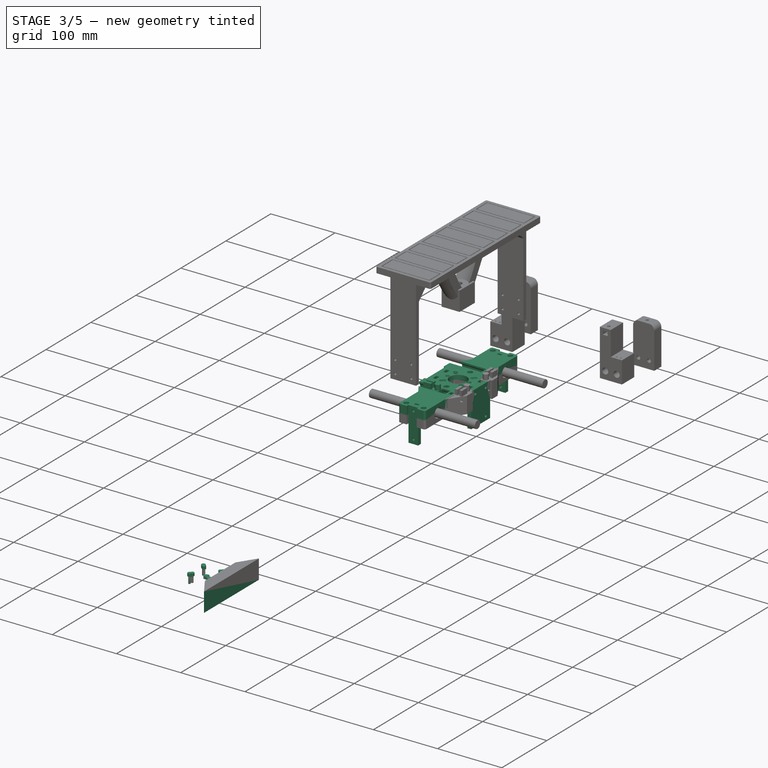
[diagram: stage 3 of 5 — iso view after this stage's code; geometry added in this stage tinted green]
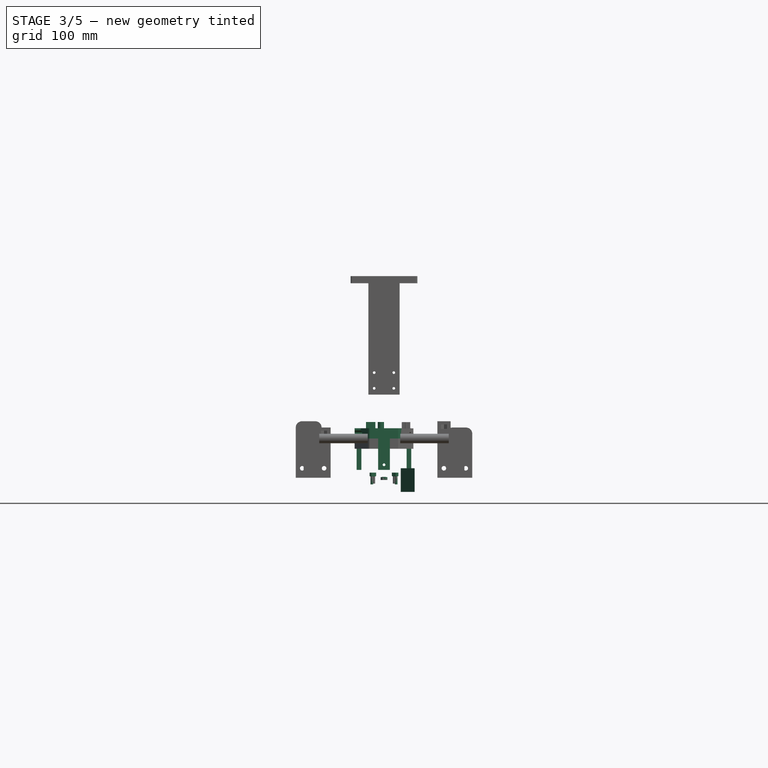
[diagram: stage 3 of 5 — front view after this stage's code; geometry added in this stage tinted green]
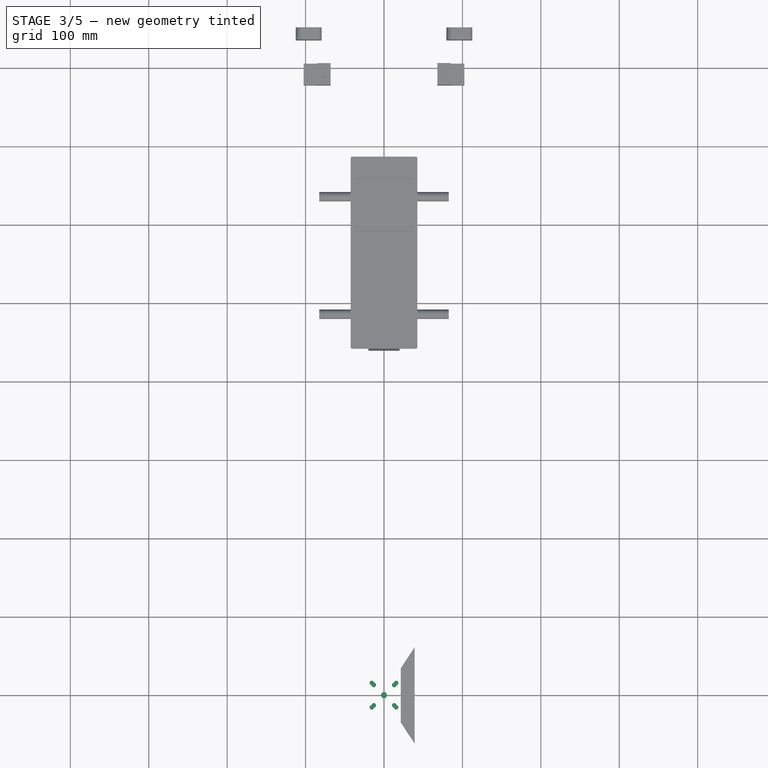
[diagram: stage 3 of 5 — top view after this stage's code; geometry added in this stage tinted green]
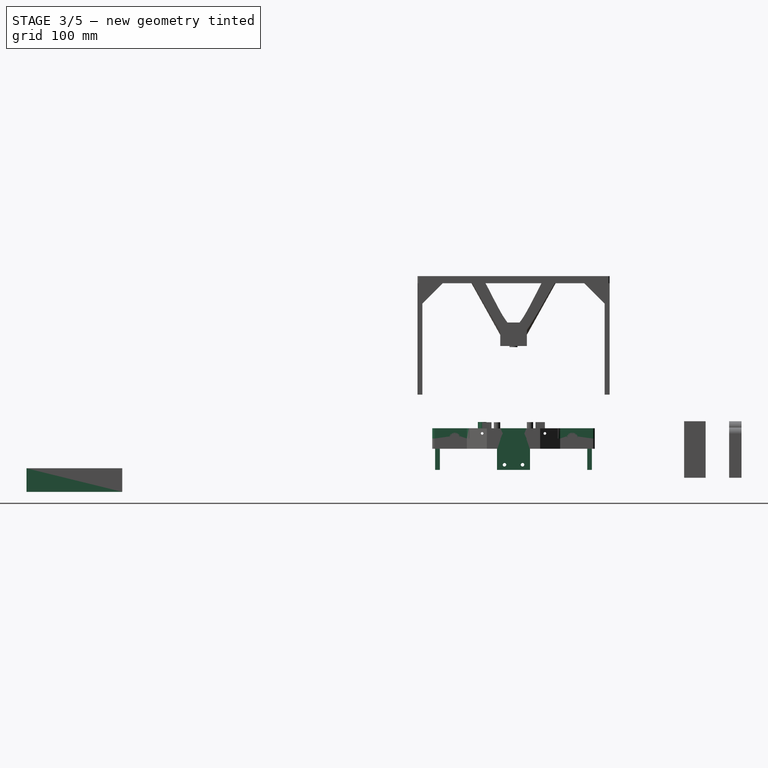
[diagram: stage 3 of 5 — right view after this stage's code; geometry added in this stage tinted green]
FEATURE [Part::Prism] boltpul_hole_sup1away001
  Circumradius = 4.28
  Height = 3.8
  Polygon = 6
FEATURE [Part::Prism] boltpul_hole_sup2001
  Circumradius = 2.4725
  Height = 4.1
  Polygon = 6
FEATURE [Part::Polygon] dent_plane001
  Close = true
  Nodes = (4) [(39,61,-15),(21.35,34,-15),(21.35,-34,-15),(39,-61,-15)]
FEATURE [Part::Extrusion] dent001
  Base = -> dent_plane001
  Dir = (0,0,30)
  Solid = true
FEATURE [Part::Feature] fbclt
  Placement = pos=(0,0,-0.1) rot=(0,0,1;0rad)
  shape: bbox 14.72 x 39.52 x 21 mm, 19 faces (baked)
FEATURE [Part::Feature] cbs_cfbclt
  shape: bbox 16.12 x 43.27 x 15 mm, 6 faces (baked)
FEATURE [Part::Feature] fbclb
  Placement = pos=(0,0,-0.2) rot=(0,0,1;0rad)
  shape: bbox 14.72 x 39.52 x 21 mm, 19 faces (baked)
FEATURE [Part::Feature] cbs_cfbclb
  shape: bbox 16.12 x 43.27 x 15 mm, 6 faces (baked)
FEATURE [Part::Cylinder] cen_lm12uu_0_ext
  Angle = 360
  Height = 32
  Placement = pos=(-16,0,0) rot=(0,1,0;1.5708rad)
  Radius = 11
FEATURE [Part::Cylinder] cen_lm12uu_0_int
  Angle = 360
  Height = 34
  Placement = pos=(-17,0,0) rot=(0,1,0;1.5708rad)
  Radius = 6
FEATURE [Part::Cut] cen_lm12uu_0
  Base = -> cen_lm12uu_0_ext
  Placement = pos=(0,75,0) rot=(0,0,1;0rad)
  Tool = -> cen_lm12uu_0_int
FEATURE [Part::FeaturePython] Clone028  label="cen_lm12uu_001"  # Draft clone (typed FeaturePython)
  Objects = -> [cen_lm12uu_0]
  Placement = pos=(0,-75,0) rot=(0,0,1;0rad)
  Scale = (1,1,1)
FEATURE [Part::Box] bclten0_cb1
  Height = 9
  Length = 12
  Placement = pos=(11,2.70833,12) rot=(0,0,1;0rad)
  Width = 4
FEATURE [Part::Box] bclten0_cb3
  Height = 9
  Length = 12
  Placement = pos=(11,9.50833,12) rot=(0,0,1;0rad)
  Width = 4
FEATURE [Part::Cylinder] bclten0_cyl
  Angle = 360
  Height = 9
  Placement = pos=(4,8.10833,12) rot=(0,0,1;0rad)
  Radius = 4
FEATURE [Part::Polygon] bclten0base_plane_yz
  Close = true
  Nodes = (12) [(0,2.90833,0),(0,2.90833,2.8375),(0,0.2,5.54583),(0,0.2,7.45417),(0,2.90833,10.1625),(0,2.90833,13),(0,13.3083,13),(0,13.3083,10.1625),+4 more]
FEATURE [Part::Extrusion] bclten0extr_base
  Base = -> bclten0base_plane_yz
  Dir = (23,0,0)
  Solid = true
FEATURE [Part::MultiFuse] bclten0clamp_base
  Shapes = -> [bclten0_cb1,bclten0_cb3,bclten0_cyl,bclten0extr_base]
FEATURE [Part::Cylinder] bclten0_base_lscrew_shank
  Angle = 360
  Height = 25
  Placement = pos=(0,0,-1) rot=(0,0,1;0rad)
  Radius = 1.7
FEATURE [Part::Cylinder] bclten0_base_lscrew_head
  Angle = 360
  Height = 9.5
  Placement = pos=(0,0,-1) rot=(0,0,1;0rad)
  Radius = 2.95
FEATURE [Part::MultiFuse] bclten0_base_lscrew
  Placement = pos=(23,8.10833,6.5) rot=(0,-1,0;1.5708rad)
  Shapes = -> [bclten0_base_lscrew_shank,bclten0_base_lscrew_head]
FEATURE [Part::Prism] bclten0_base_lscrew_nut
  Circumradius = 3.605
  Height = 5.04
  Placement = pos=(3,8.10833,6.9) rot=(0,1,0;1.5708rad)
  Polygon = 6
FEATURE [Part::Box] bclten0_base_lscrew_nut2
  Height = 6.9
  Length = 5.04
  Placement = pos=(3,4.9864,0) rot=(0,0,1;0rad)
  Width = 6.24386
FEATURE [Part::MultiFuse] bclten0_clamp_hole
  Shapes = -> [bclten0_base_lscrew,bclten0_base_lscrew_nut,bclten0_base_lscrew_nut2]
FEATURE [Part::Cut] bclten0
  Base = -> bclten0clamp_base
  Placement = pos=(11.6678,608.108,53) rot=(0,0,1;3.14159rad)
  Tool = -> bclten0_clamp_hole
FEATURE [Part::FeaturePython] Clone030  label="bclten1"  # Draft clone (typed FeaturePython)
  Objects = -> [bclten0]
  Placement = pos=(0,528.108,53) rot=(0,0,1;3.14159rad)
  Scale = (1,1,1)
FEATURE [Part::Cylinder] b2hole00_shank
  Angle = 360
  Height = 14
  Placement = pos=(0,0,-1) rot=(0,0,1;0rad)
  Radius = 1.65
FEATURE [Part::Cylinder] b2hole00_head
  Angle = 360
  Height = 4.3
  Placement = pos=(0,0,8.7) rot=(0,0,1;0rad)
  Radius = 2.9
FEATURE [Part::Prism] b2hole00_sup1
  Circumradius = 3.3
  Height = 3.6
  Placement = pos=(0,0,8.4) rot=(0,0,1;0.523599rad)
  Polygon = 3
FEATURE [Part::Cylinder] b2hole00_sup1away
  Angle = 360
  Height = 3.6
  Placement = pos=(0,0,8.4) rot=(0,0,1;0rad)
  Radius = 2.9
FEATURE [Part::Common] sup1cut004
  Base = -> b2hole00_sup1
  Tool = -> b2hole00_sup1away
FEATURE [Part::Prism] b2hole00_sup2
  Circumradius = 1.8975
  Height = 3.9
  Placement = pos=(0,0,8.1) rot=(0,0,1;0rad)
  Polygon = 6
FEATURE [Part::MultiFuse] b2hole00
  Placement = pos=(-13,-13,-3.5) rot=(0,0,1;0rad)
  Shapes = -> [b2hole00_shank,b2hole00_head,sup1cut004,b2hole00_sup2]
FEATURE [Part::FeaturePython] Clone032  label="b2hole01"  # Draft clone (typed FeaturePython)
  Objects = -> [b2hole00]
  Placement = pos=(-13,13,-3.5) rot=(0,0,1;0rad)
  Scale = (1,1,1)
FEATURE [Part::FeaturePython] Clone033  label="b2hole10"  # Draft clone (typed FeaturePython)
  Objects = -> [b2hole00]
  Placement = pos=(13,-13,-3.5) rot=(0,0,1;0rad)
  Scale = (1,1,1)
FEATURE [Part::FeaturePython] Clone034  label="b2hole11"  # Draft clone (typed FeaturePython)
  Objects = -> [b2hole00]
  Placement = pos=(13,13,-3.5) rot=(0,0,1;0rad)
  Scale = (1,1,1)
FEATURE [Part::MultiFuse] b2holes
  Shapes = -> [b2hole00,Clone032,Clone033,Clone034]
FEATURE [Part::Feature] nema14_my5602
  Placement = pos=(0,560,53) rot=(0,0,1;0rad)
  shape: bbox 35.2 x 35.2 x 50 mm, 26 faces (baked)
FEATURE [Part::Cylinder] b2hole00_shank001
  Angle = 360
  Height = 15
  Placement = pos=(0,0,-1) rot=(0,0,1;0rad)
  Radius = 1.65
FEATURE [Part::Cylinder] b2hole00_head001
  Angle = 360
  Height = 4.3
  Placement = pos=(0,0,9.7) rot=(0,0,1;0rad)
  Radius = 2.9
FEATURE [Part::Prism] b2hole00_sup1001
  Circumradius = 3.3
  Height = 3.6
  Placement = pos=(0,0,9.4) rot=(0,0,1;0.523599rad)
  Polygon = 3
FEATURE [Part::Cylinder] b2hole00_sup1away001
  Angle = 360
  Height = 3.6
  Placement = pos=(0,0,9.4) rot=(0,0,1;0rad)
  Radius = 2.9
FEATURE [Part::Common] sup1cut005
  Base = -> b2hole00_sup1001
  Tool = -> b2hole00_sup1away001
FEATURE [Part::Prism] b2hole00_sup2001
  Circumradius = 1.8975
  Height = 3.9
  Placement = pos=(0,0,9.1) rot=(0,0,1;0rad)
  Polygon = 6
FEATURE [Part::MultiFuse] b2hole00001
  Placement = pos=(-15.5,-15.5,-4.5) rot=(0,0,1;0rad)
  Shapes = -> [b2hole00_shank001,b2hole00_head001,sup1cut005,b2hole00_sup2001]
FEATURE [Part::FeaturePython] Clone035  label="b2hole00002"  # Draft clone (typed FeaturePython)
  Objects = -> [b2hole00001]
  Placement = pos=(-15.5,15.5,-4.5) rot=(0,0,1;0rad)
  Scale = (1,1,1)
FEATURE [Part::FeaturePython] Clone036  label="b2hole00003"  # Draft clone (typed FeaturePython)
  Objects = -> [b2hole00001]
  Placement = pos=(15.5,-15.5,-4.5) rot=(0,0,1;0rad)
  Scale = (1,1,1)
FEATURE [Part::FeaturePython] Clone037  label="b2hole00004"  # Draft clone (typed FeaturePython)
  Objects = -> [b2hole00001]
  Placement = pos=(15.5,15.5,-4.5) rot=(0,0,1;0rad)
  Scale = (1,1,1)
FEATURE [Part::MultiFuse] b2holes001
  Shapes = -> [b2hole00001,Clone035,Clone036,Clone037]
FEATURE [Part::Feature] lg_hole_nx
  shape: bbox 3.6 x 42.64 x 28 mm, 6 faces (baked)
FEATURE [Part::Feature] lgsup_nx
  shape: bbox 6 x 42 x 41 mm, 6 faces (baked)
FEATURE [Part::Prism] lgnuthole0_nx_nut
  Circumradius = 4.43
  Height = 4.8
  Placement = pos=(-2.4,0,0) rot=(0,1,0;1.5708rad)
  Polygon = 6
FEATURE [Part::Box] lgnuthole0_nx_hole
  Height = 7.9
  Length = 4.8
  Placement = pos=(-2.4,-3.83638,0) rot=(0,0,1;0rad)
  Width = 7.67276
FEATURE [Part::Fuse] lgnuthole0_nx
  Base = -> lgnuthole0_nx_nut
  Placement = pos=(-26.43,-11.5,6.1) rot=(0,0,1;0rad)
  Tool = -> lgnuthole0_nx_hole
FEATURE [Part::FeaturePython] Clone043  label="lgnuthole1nx"  # Draft clone (typed FeaturePython)
  Objects = -> [lgnuthole0_nx]
  Placement = pos=(-26.43,11.5,6.1) rot=(0,0,1;0rad)
  Scale = (1,1,1)
FEATURE [Part::Feature] lgboltsnx
  shape: bbox 8 x 27.5 x 44.5 mm, 12 faces, 4 solids (baked)
FEATURE [Part::Feature] lgsuphole_nx
  shape: bbox 7.4 x 42.8 x 15 mm, 6 faces (baked)
FEATURE [Part::Feature] lg_hole_x
  shape: bbox 3.6 x 42.64 x 28 mm, 6 faces (baked)
FEATURE [Part::Feature] lgsup_x
  shape: bbox 6 x 42 x 41 mm, 6 faces (baked)
FEATURE [Part::Prism] lgnuthole0_x_nut
  Circumradius = 4.43
  Height = 4.8
  Placement = pos=(-2.4,0,0) rot=(0,1,0;1.5708rad)
  Polygon = 6
FEATURE [Part::Box] lgnuthole0_x_hole
  Height = 7.9
  Length = 4.8
  Placement = pos=(-2.4,-3.83638,0) rot=(0,0,1;0rad)
  Width = 7.67276
FEATURE [Part::Fuse] lgnuthole0_x
  Base = -> lgnuthole0_x_nut
  Placement = pos=(26.43,-11.5,6.1) rot=(0,0,1;0rad)
  Tool = -> lgnuthole0_x_hole
FEATURE [Part::FeaturePython] Clone044  label="lgnuthole1x"  # Draft clone (typed FeaturePython)
  Objects = -> [lgnuthole0_x]
  Placement = pos=(26.43,11.5,6.1) rot=(0,0,1;0rad)
  Scale = (1,1,1)
FEATURE [Part::Feature] lgboltsx
  shape: bbox 8 x 27.5 x 44.5 mm, 12 faces, 4 solids (baked)
FEATURE [Part::Feature] lgsuphole_x
  shape: bbox 7.4 x 42.8 x 15 mm, 6 faces (baked)
FEATURE [Part::Feature] lgy_hole_ny
  shape: bbox 15.64 x 4.6 x 28 mm, 6 faces (baked)
FEATURE [Part::Feature] lgysup_ny
  shape: bbox 15 x 6 x 41 mm, 6 faces (baked)
FEATURE [Part::Prism] lgynuthole0_ny_nut
  Circumradius = 3.605
  Height = 3.6
  Placement = pos=(0,-1.8,0) rot=(-0.57735,0.57735,0.57735;2.0944rad)
  Polygon = 6
FEATURE [Part::Box] lgynuthole0_ny_hole
  Height = 7.9
  Length = 6.24386
  Placement = pos=(-3.12193,-1.8,0) rot=(0,0,1;0rad)
  Width = 3.6
FEATURE [Part::Fuse] lgynuthole0_ny
  Base = -> lgynuthole0_ny_nut
  Placement = pos=(0,-92.16,6.1) rot=(0,0,1;0rad)
  Tool = -> lgynuthole0_ny_hole
FEATURE [Part::Feature] lgyboltsny
  shape: bbox 3.5 x 8 x 43.5 mm, 6 faces, 2 solids (baked)
FEATURE [Part::Feature] lgysuphole_ny
  shape: bbox 15.8 x 7.4 x 15 mm, 6 faces (baked)
FEATURE [Part::Feature] lgy_hole_y
  shape: bbox 15.64 x 4.6 x 28 mm, 6 faces (baked)
FEATURE [Part::Feature] lgysup_y
  shape: bbox 15 x 6 x 41 mm, 6 faces (baked)
FEATURE [Part::Prism] lgynuthole0_y_nut
  Circumradius = 3.605
  Height = 3.6
  Placement = pos=(0,-1.8,0) rot=(-0.57735,0.57735,0.57735;2.0944rad)
  Polygon = 6
FEATURE [Part::Box] lgynuthole0_y_hole
  Height = 7.9
  Length = 6.24386
  Placement = pos=(-3.12193,-1.8,0) rot=(0,0,1;0rad)
  Width = 3.6
FEATURE [Part::Fuse] lgynuthole0_y
  Base = -> lgynuthole0_y_nut
  Placement = pos=(0,92.16,6.1) rot=(0,0,1;0rad)
  Tool = -> lgynuthole0_y_hole
FEATURE [Part::Feature] lgyboltsy
  shape: bbox 3.5 x 8 x 43.5 mm, 6 faces, 2 solids (baked)
FEATURE [Part::Feature] lgysuphole_y
  shape: bbox 15.8 x 7.4 x 15 mm, 6 faces (baked)
FEATURE [Part::MultiFuse] censlid_topholes
  Shapes = -> [toprod,botrod,cen_lm12uu_0_cont,Clone029,beltholes_t,Clone031,contmotors,bholes_motorstf,boltnut002,Clone039,boltnut003,Clone040,Clone041,Clone042,lg_hole_nx,lg_hole_x,lgy_hole_ny,lgy_hole_y,cbs_cfbclt,cbs_cfbclb,lgnuthole0_nx,Clone043,lgboltsnx,lgnuthole0_x,Clone044,lgboltsx,lgynuthole0_ny,lgyboltsny,lgynuthole0_y,lgyboltsy]
FEATURE [Part::Fuse] central_slider_bear
  Base = -> cen_lm12uu_0
  Placement = pos=(0,560,53) rot=(0,0,1;0rad)
  Tool = -> Clone028
FEATURE [Part::MultiFuse] central_slider_bot_sup
  Shapes = -> [topcenslid_dent,lgsup_nx,lgsup_x,lgysup_ny,lgysup_y]
FEATURE [Part::Cut] central_slider_top
  Base = -> central_slider_bot_sup
  Placement = pos=(0,560,53) rot=(0,0,1;0rad)
  Tool = -> censlid_topholes
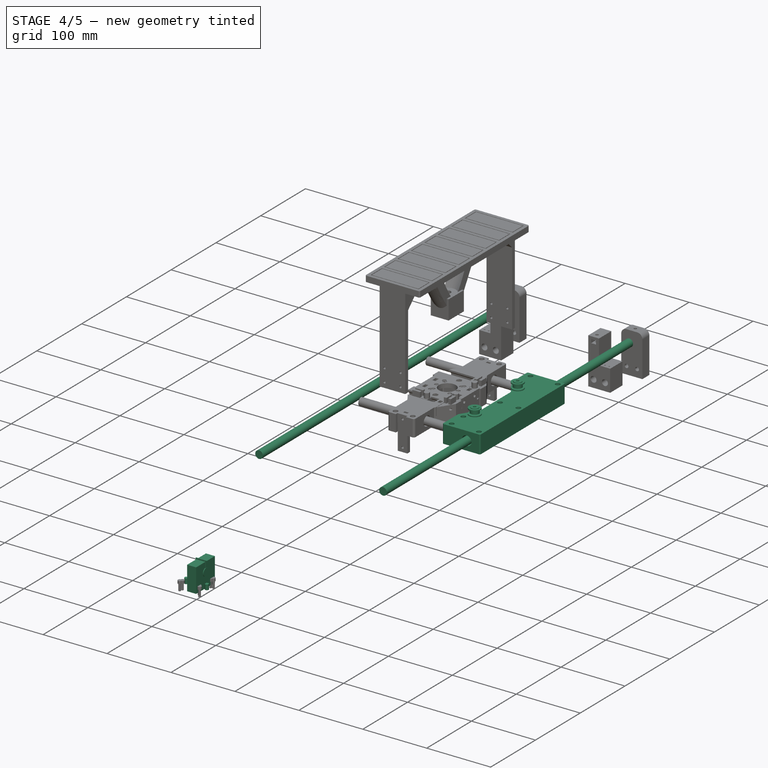
[diagram: stage 4 of 5 — iso view after this stage's code; geometry added in this stage tinted green]
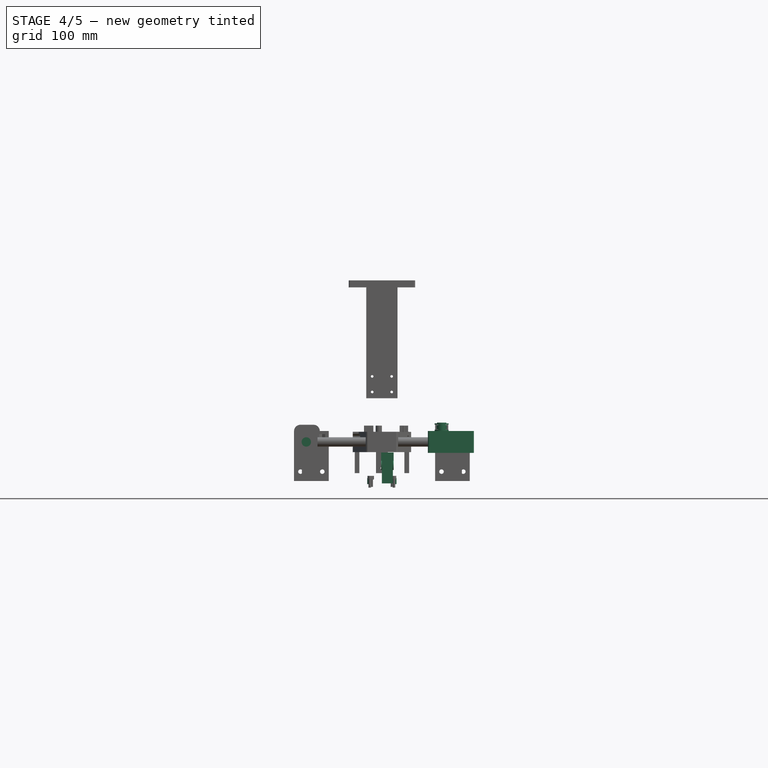
[diagram: stage 4 of 5 — front view after this stage's code; geometry added in this stage tinted green]
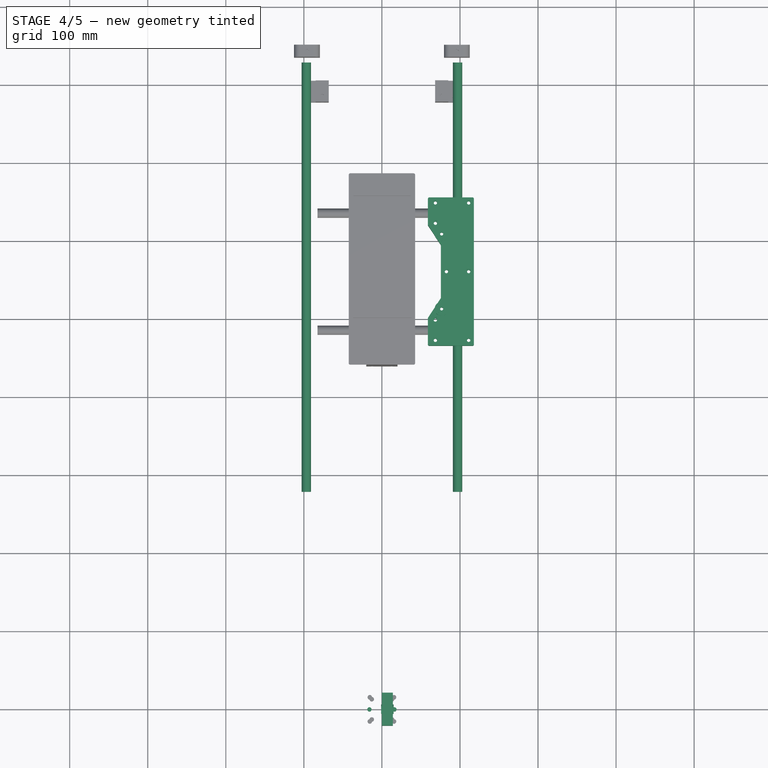
[diagram: stage 4 of 5 — top view after this stage's code; geometry added in this stage tinted green]
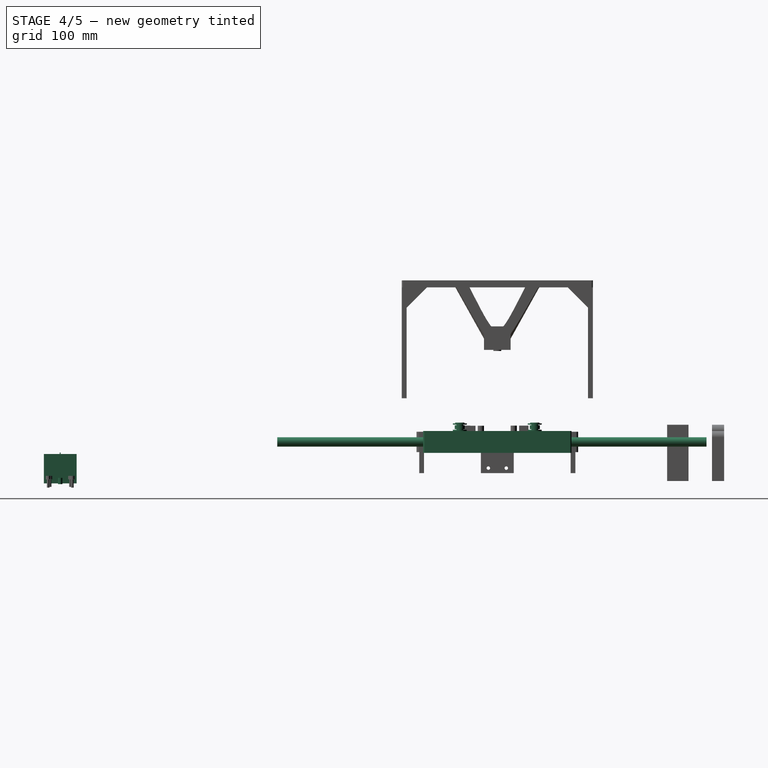
[diagram: stage 4 of 5 — right view after this stage's code; geometry added in this stage tinted green]
FEATURE [Part::Box] total_box
  Height = 37.5
  Length = 14
  Placement = pos=(0,-21,0) rot=(0,0,1;0rad)
  Width = 42
FEATURE [Part::Box] side_box_r
  Height = 31.5
  Length = 14
  Placement = pos=(0,10,6) rot=(0,0,1;0rad)
  Width = 11
FEATURE [Part::Box] side_box_l
  Height = 31.5
  Length = 14
  Placement = pos=(0,-21,6) rot=(0,0,1;0rad)
  Width = 11
FEATURE [Part::Fuse] side_boxes
  Base = -> side_box_r
  Tool = -> side_box_l
FEATURE [Part::Cylinder] shaft_hole
  Angle = 360
  Height = 16
  Placement = pos=(-1,0,23) rot=(0,1,0;1.5708rad)
  Radius = 6
FEATURE [Part::Box] up_sep
  Height = 15.5
  Length = 16
  Placement = pos=(-1,-0.6,24) rot=(0,0,1;0rad)
  Width = 1.2
FEATURE [Part::Cylinder] tbolt_shaft
  Angle = 360
  Height = 22
  Placement = pos=(7,11,32.5) rot=(1,0,0;1.5708rad)
  Radius = 2
FEATURE [Part::Cylinder] tbolt_head
  Angle = 360
  Height = 5.4
  Placement = pos=(7,11,32.5) rot=(1,0,0;1.5708rad)
  Radius = 3.85
FEATURE [Part::MultiFuse] fuse_shaft_holes
  Shapes = -> [tbolt_head,tbolt_shaft,up_sep,shaft_hole]
FEATURE [Part::Cylinder] mbolt_sh_r
  Angle = 360
  Height = 8
  Placement = pos=(7,16,-1) rot=(0,0,1;0rad)
  Radius = 2.75
FEATURE [Part::Cylinder] mbolt_sh_l
  Angle = 360
  Height = 8
  Placement = pos=(7,-16,-1) rot=(0,0,1;0rad)
  Radius = 2.75
FEATURE [Part::Fuse] mbolts_sh
  Base = -> mbolt_sh_r
  Placement = pos=(0,-7,0) rot=(0,0,1;1.5708rad)
  Tool = -> mbolt_sh_l
FEATURE [Part::Cylinder] rod_y_l
  Angle = 360
  Height = 550
  Placement = pos=(-96.9,278,53) rot=(-1,0,0;1.5708rad)
  Radius = 6
FEATURE [Part::Cylinder] rod_y_r
  Angle = 360
  Height = 550
  Placement = pos=(96.9,278,53) rot=(-1,0,0;1.5708rad)
  Radius = 6
FEATURE [Part::Box] topsideslid_box001
  Height = 14
  Length = 59
  Placement = pos=(-21,-95,0) rot=(0,0,1;0rad)
  Width = 190
FEATURE [Part::Box] bosidetslid_box001
  Height = 14
  Length = 59
  Placement = pos=(-21,-95,-14) rot=(0,0,1;0rad)
  Width = 190
FEATURE [Part::Fillet] topsideslid_fllt001
  Base = -> topsideslid_box001
  Edges = 4 edges r=2: [Edge1,Edge3,Edge5,Edge7]
  Placement = pos=(0,0,0) rot=(0,0,1;3.14159rad)
FEATURE [Part::Fillet] botsideslid_fllt001
  Base = -> bosidetslid_box001
  Edges = 4 edges r=2: [Edge1,Edge3,Edge5,Edge7]
  Placement = pos=(0,0,0) rot=(0,0,1;3.14159rad)
FEATURE [Part::Circle] sliderod_circ001
  Angle0 = 0
  Angle1 = 360
  Placement = pos=(0,-96,0) rot=(-1,0,0;1.5708rad)
  Radius = 7.5
FEATURE [Part::Extrusion] sliderod001
  Base = -> sliderod_circ001
  Dir = (0,192,0)
  Solid = true
FEATURE [Part::Cylinder] lm12uu_0_ext001
  Angle = 360
  Height = 32
  Placement = pos=(0,-81,0) rot=(-1,0,0;1.5708rad)
  Radius = 11
FEATURE [Part::Cylinder] lm12uu_0_int001
  Angle = 360
  Height = 34
  Placement = pos=(0,-82,0) rot=(-1,0,0;1.5708rad)
  Radius = 6
FEATURE [Part::Cut] lm12uu_0001
  Base = -> lm12uu_0_ext001
  Tool = -> lm12uu_0_int001
FEATURE [Part::Circle] lm12uu_0_cont_circ001
  Angle0 = 0
  Angle1 = 360
  Placement = pos=(0,-81.5,0) rot=(-1,0,0;1.5708rad)
  Radius = 11.35
FEATURE [Part::Extrusion] lm12uu_0_cont001  label="lm12uu_0_cont002"
  Base = -> lm12uu_0_cont_circ001
  Dir = (0,33,0)
  Solid = true
FEATURE [Part::FeaturePython] Clone017  label="lm12uu_0002"  # Draft clone (typed FeaturePython)
  Objects = -> [lm12uu_0001]
  Placement = pos=(0,130,0) rot=(0,0,1;0rad)
  Scale = (1,1,1)
FEATURE [Part::FeaturePython] Clone018  label="lm12uu_0_cont003"  # Draft clone (typed FeaturePython)
  Objects = -> [lm12uu_0_cont001]
  Placement = pos=(0,130,0) rot=(0,0,1;0rad)
  Scale = (1,1,1)
FEATURE [Part::Circle] holdrod_0_circ001
  Angle0 = 0
  Angle1 = 360
  Placement = pos=(14,0,0) rot=(0,1,0;1.5708rad)
  Radius = 6.175
FEATURE [Part::Extrusion] holdrod_0001
  Base = -> holdrod_0_circ001
  Dir = (25,0,0)
  Placement = pos=(0,-75,0) rot=(0,0,1;0rad)
  Solid = true
FEATURE [Part::Circle] holdrod_1_circ001
  Angle0 = 0
  Angle1 = 360
  Placement = pos=(14,0,0) rot=(0,1,0;1.5708rad)
  Radius = 6.175
FEATURE [Part::Extrusion] holdrod_1001
  Base = -> holdrod_1_circ001
  Dir = (25,0,0)
  Placement = pos=(0,75,0) rot=(0,0,1;0rad)
  Solid = true
FEATURE [Part::Cylinder] bolt_hole_bolt_shank001
  Angle = 360
  Height = 30
  Placement = pos=(0,0,-1) rot=(0,0,1;0rad)
  Radius = 2.15
FEATURE [Part::Cylinder] bolt_hole_bolt_head001
  Angle = 360
  Height = 5.3
  Placement = pos=(0,0,23.7) rot=(0,0,1;0rad)
  Radius = 3.65
FEATURE [Part::Prism] bolt_hole_bolt_sup1001
  Circumradius = 4.3
  Height = 4.6
  Placement = pos=(0,0,23.4) rot=(0,0,1;0.523599rad)
  Polygon = 3
FEATURE [Part::Cylinder] bolt_hole_bolt_sup1away001
  Angle = 360
  Height = 4.6
  Placement = pos=(0,0,23.4) rot=(0,0,1;0rad)
  Radius = 3.65
FEATURE [Part::Common] sup1cut002
  Base = -> bolt_hole_bolt_sup1001
  Tool = -> bolt_hole_bolt_sup1away001
FEATURE [Part::Prism] bolt_hole_bolt_sup2001
  Circumradius = 2.4725
  Height = 4.9
  Placement = pos=(0,0,23.1) rot=(0,0,1;0rad)
  Polygon = 6
FEATURE [Part::MultiFuse] bolt_hole_bolt001
  Shapes = -> [bolt_hole_bolt_shank001,bolt_hole_bolt_head001,sup1cut002,bolt_hole_bolt_sup2001]
FEATURE [Part::Prism] bolt_hole_nut001
  Circumradius = 4.28
  Height = 4.5
  Placement = pos=(0,0,-1) rot=(0,0,1;0rad)
  Polygon = 6
FEATURE [Part::Prism] bolt_hole_nutsup1001
  Circumradius = 4.3
  Height = 3.8
  Placement = pos=(0,0,0) rot=(0,0,1;0.523599rad)
  Polygon = 3
FEATURE [Part::Prism] bolt_hole_supnut1away001
  Circumradius = 4.28
  Height = 3.8
  Polygon = 6
FEATURE [Part::Common] supnut1_cut001
  Base = -> bolt_hole_nutsup1001
  Tool = -> bolt_hole_supnut1away001
FEATURE [Part::Prism] bolt_hole_supnut2001
  Circumradius = 2.4725
  Height = 4.1
  Polygon = 6
FEATURE [Part::MultiFuse] boltnut001
  Placement = pos=(-14.25,0,-14) rot=(0,0,1;1.5708rad)
  Shapes = -> [bolt_hole_bolt001,bolt_hole_nut001,supnut1_cut001,bolt_hole_supnut2001]
FEATURE [Part::FeaturePython] Clone019  label="bolt_hole_r001"  # Draft clone (typed FeaturePython)
  Objects = -> [boltnut001]
  Placement = pos=(14.25,0,-14) rot=(0,0,1;0.523599rad)
  Scale = (1,1,1)
FEATURE [Part::FeaturePython] Clone020  label="bolt_hole_lu001"  # Draft clone (typed FeaturePython)
  Objects = -> [boltnut001]
  Placement = pos=(-14.25,-88,-14) rot=(0,0,1;0rad)
  Scale = (1,1,1)
FEATURE [Part::FeaturePython] Clone021  label="bolt_hole_ld001"  # Draft clone (typed FeaturePython)
  Objects = -> [boltnut001]
  Placement = pos=(-14.25,88,-14) rot=(0,0,1;0rad)
  Scale = (1,1,1)
FEATURE [Part::FeaturePython] Clone022  label="bolt_hole_ru001"  # Draft clone (typed FeaturePython)
  Objects = -> [boltnut001]
  Placement = pos=(28.4,88,-14) rot=(0,0,1;0rad)
  Scale = (1,1,1)
FEATURE [Part::FeaturePython] Clone023  label="bolt_hole_rd001"  # Draft clone (typed FeaturePython)
  Objects = -> [boltnut001]
  Placement = pos=(28.4,-88,-14) rot=(0,0,1;0rad)
  Scale = (1,1,1)
FEATURE [Part::FeaturePython] Clone024  label="bolt_hole_rmu001"  # Draft clone (typed FeaturePython)
  Objects = -> [boltnut001]
  Placement = pos=(28.4,62,-14) rot=(0,0,1;0rad)
  Scale = (1,1,1)
FEATURE [Part::FeaturePython] Clone025  label="bolt_hole_rmd001"  # Draft clone (typed FeaturePython)
  Objects = -> [boltnut001]
  Placement = pos=(28.4,-62,-14) rot=(0,0,1;0rad)
  Scale = (1,1,1)
FEATURE [Part::Cylinder] boltpul_hole_shank001
  Angle = 360
  Height = 30
  Placement = pos=(0,0,-1) rot=(0,0,1;0rad)
  Radius = 2.15
FEATURE [Part::Prism] boltpul_hole_head001
  Circumradius = 4.28
  Height = 4.5
  Placement = pos=(0,0,-1) rot=(0,0,1;0rad)
  Polygon = 6
FEATURE [Part::Prism] boltpul_hole_sup1001
  Circumradius = 4.3
  Height = 3.8
  Placement = pos=(0,0,0) rot=(0,0,1;0.523599rad)
  Polygon = 3
FEATURE [Part::Common] sup1cut003
  Base = -> boltpul_hole_sup1001
  Tool = -> boltpul_hole_sup1away001
FEATURE [Part::MultiFuse] boltpul_hole001
  Placement = pos=(20.35,48,-14) rot=(0,0,1;0.523599rad)
  Shapes = -> [boltpul_hole_shank001,boltpul_hole_head001,sup1cut003,boltpul_hole_sup2001]
FEATURE [Part::Feature] idlepull_01001
  shape: bbox 18 x 18 x 1.6 mm, 4 faces (baked)
FEATURE [Part::Feature] idlepull_02001
  shape: bbox 9 x 9 x 0.8 mm, 4 faces (baked)
FEATURE [Part::Feature] idlepull_03001
  shape: bbox 13 x 13 x 5 mm, 4 faces (baked)
FEATURE [Part::Feature] idlepull_04001
  shape: bbox 9 x 9 x 0.8 mm, 4 faces (baked)
FEATURE [Part::Feature] idlepull_05001
  shape: bbox 18 x 18 x 1.6 mm, 4 faces (baked)
FEATURE [Part::Feature] idlepull_06001
  shape: bbox 12 x 12 x 1 mm, 4 faces (baked)
FEATURE [Part::Compound] idlepull_06002
  Links = -> [idlepull_01001,idlepull_02001,idlepull_03001,idlepull_04001,idlepull_05001,idlepull_06001]
FEATURE [Part::FeaturePython] Clone026  label="boltpul_hole_002"  # Draft clone (typed FeaturePython)
  Objects = -> [boltpul_hole001]
  Placement = pos=(20.35,-48,-14) rot=(0,0,1;0.523599rad)
  Scale = (1,1,1)
FEATURE [Part::FeaturePython] Clone027  label="idlepull_06003"  # Draft clone (typed FeaturePython)
  Objects = -> [idlepull_06002]
  Placement = pos=(0,-96,0) rot=(0,0,1;0rad)
  Scale = (1,1,1)
FEATURE [Part::Compound] idlepulls001
  Links = -> [idlepull_06002,Clone027]
  Placement = pos=(96.9,560,53) rot=(0,0,1;3.14159rad)
FEATURE [Part::MultiFuse] holes001
  Placement = pos=(0,0,0) rot=(0,0,1;3.14159rad)
  Shapes = -> [sliderod001,lm12uu_0_cont001,Clone018,holdrod_0001,holdrod_1001,boltnut001,Clone019,Clone020,Clone021,Clone022,Clone023,Clone024,Clone025,boltpul_hole001,Clone026,dent001]
FEATURE [Part::Fuse] slider_right_bear
  Base = -> lm12uu_0001
  Placement = pos=(96.9,560,53) rot=(0,0,1;0rad)
  Tool = -> Clone017
FEATURE [Part::Cut] slider_right_top
  Base = -> topsideslid_fllt001
  Placement = pos=(96.9,560,53) rot=(0,0,1;0rad)
  Tool = -> holes001
FEATURE [Part::Cut] slider_right_bot
  Base = -> botsideslid_fllt001
  Placement = pos=(96.9,560,53) rot=(0,0,1;0rad)
  Tool = -> holes001
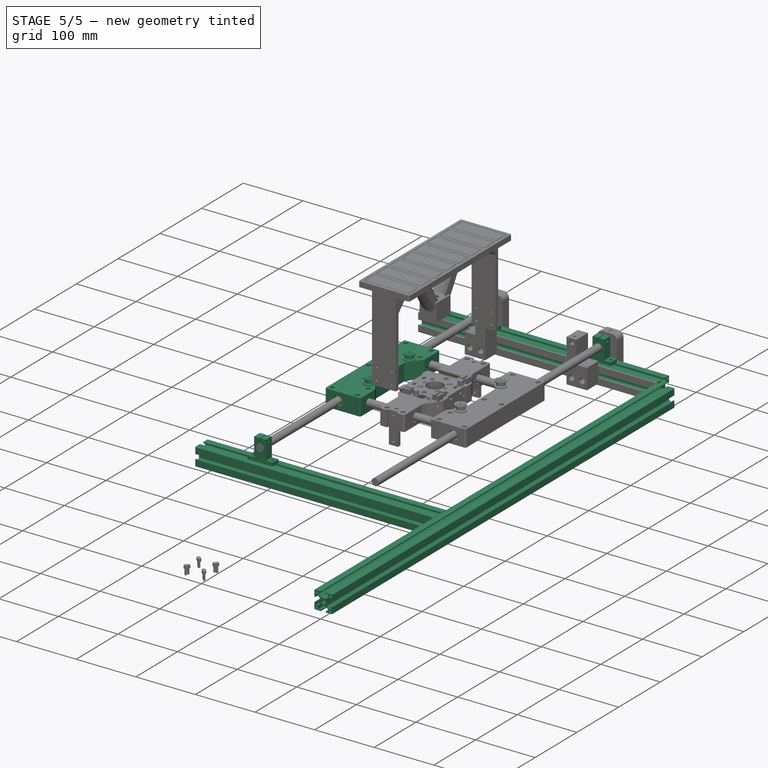
[diagram: stage 5 of 5 — iso view after this stage's code; geometry added in this stage tinted green]
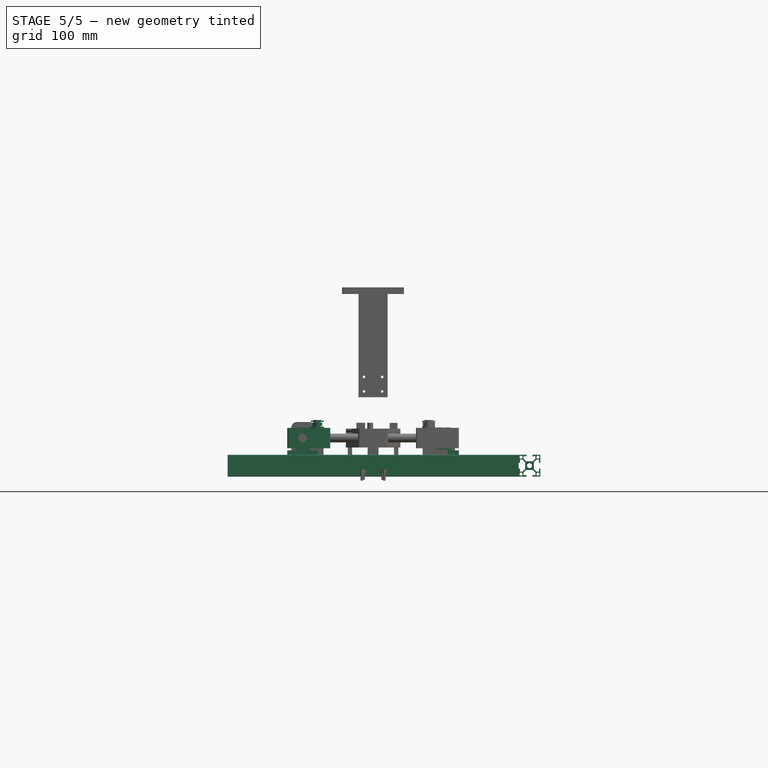
[diagram: stage 5 of 5 — front view after this stage's code; geometry added in this stage tinted green]
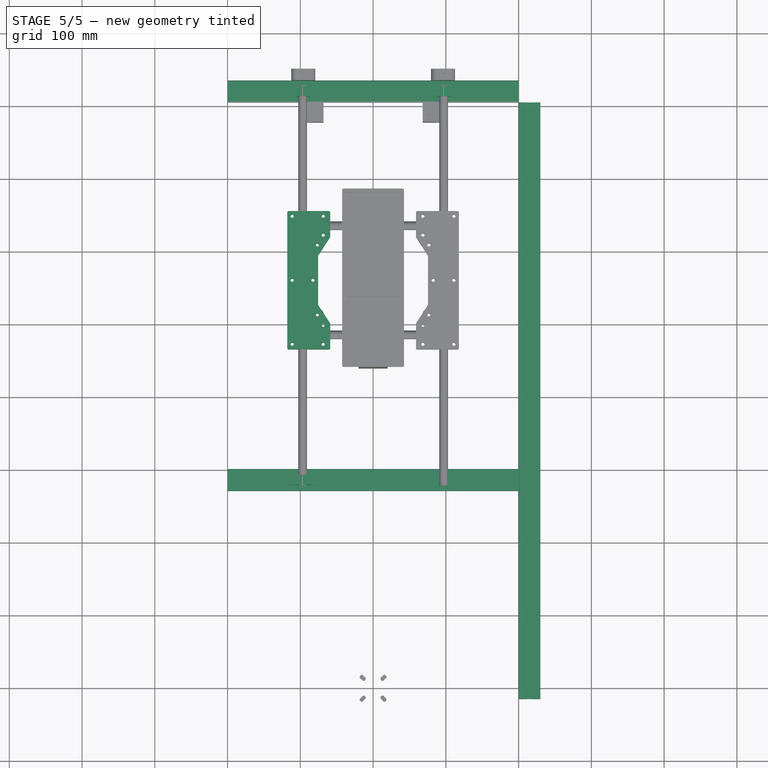
[diagram: stage 5 of 5 — top view after this stage's code; geometry added in this stage tinted green]
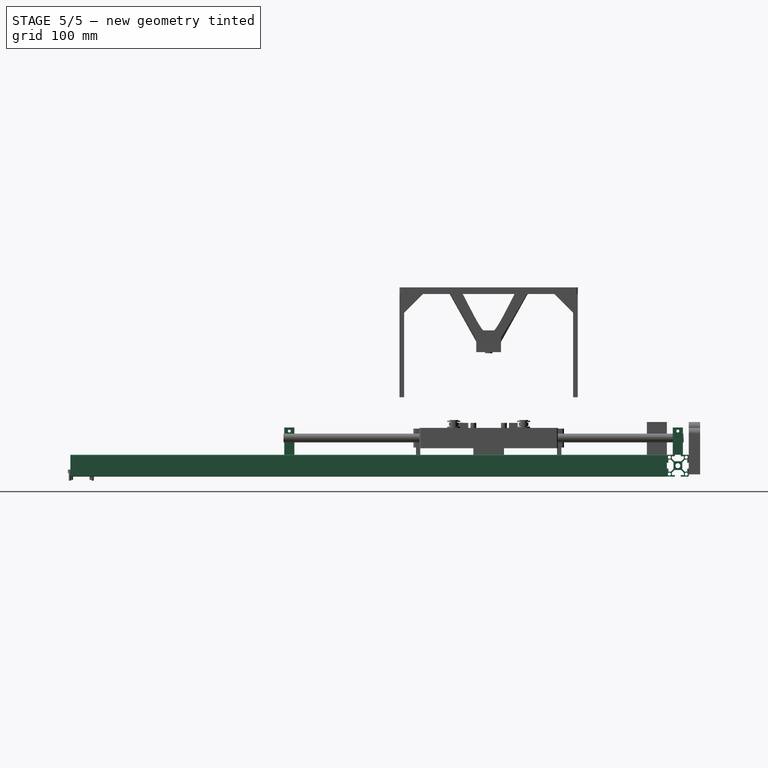
[diagram: stage 5 of 5 — right view after this stage's code; geometry added in this stage tinted green]
FEATURE [Sketcher::SketchObject] sk_alu_x_fb
  Placement = pos=(-200,0,15) rot=(0,1,0;1.5708rad)
  sketch-geometry (53):
    g0: LineSegment StartX=-6 StartY=-4.58579 StartZ=0 EndX=-6 EndY=4.58579 EndZ=0
    g1: LineSegment StartX=4.58579 StartY=6 StartZ=0 EndX=-4.58579 EndY=6 EndZ=0
    g2: LineSegment StartX=-6 StartY=4.58579 StartZ=0 EndX=-9.66421 EndY=8.25 EndZ=0
    g3: LineSegment StartX=-4.58579 StartY=6 StartZ=0 EndX=-8.25 EndY=9.66421 EndZ=0
    g4: LineSegment StartX=-9.66421 StartY=8.25 StartZ=0 EndX=-13 EndY=8.25 EndZ=0
    g5: LineSegment StartX=-13 StartY=8.25 StartZ=0 EndX=-13 EndY=4 EndZ=0
    g6: LineSegment StartX=-8.25 StartY=9.66421 StartZ=0 EndX=-8.25 EndY=13 EndZ=0
    g7: LineSegment StartX=-8.25 StartY=13 StartZ=0 EndX=-4 EndY=13 EndZ=0
    g8: LineSegment StartX=-13 StartY=4 StartZ=0 EndX=-15 EndY=4 EndZ=0
    g9: LineSegment StartX=-4 StartY=13 StartZ=0 EndX=-4 EndY=15 EndZ=0
    g10: LineSegment StartX=-4 StartY=15 StartZ=0 EndX=-14 EndY=15 EndZ=0
    g11: LineSegment StartX=-15 StartY=4 StartZ=0 EndX=-15 EndY=14 EndZ=0
    g12: ArcOfCircle CenterX=-14 CenterY=14 CenterZ=0 NormalX=0 NormalY=0 NormalZ=1 Radius=1 StartAngle=1.5708 EndAngle=3.14159
    g13: Circle CenterX=-11.6 CenterY=11.6 CenterZ=0 NormalX=0 NormalY=0 NormalZ=1 Radius=2.1
    g14: Circle CenterX=0 CenterY=0 CenterZ=0 NormalX=0 NormalY=0 NormalZ=1 Radius=3.4
    g15: LineSegment StartX=6 StartY=4.58579 StartZ=0 EndX=6 EndY=-4.58579 EndZ=0
    g16: LineSegment StartX=4.58579 StartY=6 StartZ=0 EndX=8.25 EndY=9.66421 EndZ=0
    g17: LineSegment StartX=8.25 StartY=9.66421 StartZ=0 EndX=8.25 EndY=13 EndZ=0
    g18: LineSegment StartX=8.25 StartY=13 StartZ=0 EndX=4 EndY=13 EndZ=0
    g19: LineSegment StartX=4 StartY=13 StartZ=0 EndX=4 EndY=15 EndZ=0
    g20: LineSegment StartX=6 StartY=4.58579 StartZ=0 EndX=9.66421 EndY=8.25 EndZ=0
    g21: LineSegment StartX=9.66421 StartY=8.25 StartZ=0 EndX=13 EndY=8.25 EndZ=0
    g22: LineSegment StartX=13 StartY=8.25 StartZ=0 EndX=13 EndY=4 EndZ=0
    g23: LineSegment StartX=13 StartY=4 StartZ=0 EndX=15 EndY=4 EndZ=0
    g24: LineSegment StartX=15 StartY=4 StartZ=0 EndX=15 EndY=14 EndZ=0
    g25: Circle CenterX=11.6 CenterY=11.6 CenterZ=0 NormalX=0 NormalY=0 NormalZ=1 Radius=2.1
    g26: LineSegment StartX=4 StartY=15 StartZ=0 EndX=14 EndY=15 EndZ=0
    g27: ArcOfCircle CenterX=14 CenterY=14 CenterZ=0 NormalX=0 NormalY=0 NormalZ=1 Radius=1 StartAngle=6.28319 EndAngle=7.85398
    g28: LineSegment StartX=6 StartY=-4.58579 StartZ=0 EndX=9.66421 EndY=-8.25 EndZ=0
    g29: LineSegment StartX=9.66421 StartY=-8.25 StartZ=0 EndX=13 EndY=-8.25 EndZ=0
    g30: LineSegment StartX=13 StartY=-8.25 StartZ=0 EndX=13 EndY=-4 EndZ=0
    g31: LineSegment StartX=13 StartY=-4 StartZ=0 EndX=15 EndY=-4 EndZ=0
    g32: LineSegment StartX=15 StartY=-4 StartZ=0 EndX=15 EndY=-14 EndZ=0
    g33: LineSegment StartX=14 StartY=-15 StartZ=0 EndX=4 EndY=-15 EndZ=0
    g34: LineSegment StartX=4 StartY=-15 StartZ=0 EndX=4 EndY=-13 EndZ=0
    g35: LineSegment StartX=4 StartY=-13 StartZ=0 EndX=8.25 EndY=-13 EndZ=0
    g36: LineSegment StartX=8.25 StartY=-13 StartZ=0 EndX=8.25 EndY=-9.66421 EndZ=0
    g37: LineSegment StartX=8.25 StartY=-9.66421 StartZ=0 EndX=4.58579 EndY=-6 EndZ=0
    g38: LineSegment StartX=4.58579 StartY=-6 StartZ=0 EndX=-4.58579 EndY=-6 EndZ=0
    g39: LineSegment StartX=-4.58579 StartY=-6 StartZ=0 EndX=-8.25 EndY=-9.66421 EndZ=0
    g40: LineSegment StartX=-8.25 StartY=-9.66421 StartZ=0 EndX=-8.25 EndY=-13 EndZ=0
    g41: LineSegment StartX=-8.25 StartY=-13 StartZ=0 EndX=-4 EndY=-13 EndZ=0
    g42: LineSegment StartX=-4 StartY=-13 StartZ=0 EndX=-4 EndY=-15 EndZ=0
    g43: LineSegment StartX=-4 StartY=-15 StartZ=0 EndX=-14 EndY=-15 EndZ=0
    g44: ArcOfCircle CenterX=14 CenterY=-14 CenterZ=0 NormalX=0 NormalY=0 NormalZ=1 Radius=1 StartAngle=4.71239 EndAngle=6.28319
    g45: LineSegment StartX=-6 StartY=-4.58579 StartZ=0 EndX=-9.66421 EndY=-8.25 EndZ=0
    g46: LineSegment StartX=-9.66421 StartY=-8.25 StartZ=0 EndX=-13 EndY=-8.25 EndZ=0
    g47: LineSegment StartX=-13 StartY=-8.25 StartZ=0 EndX=-13 EndY=-4 EndZ=0
    g48: LineSegment StartX=-13 StartY=-4 StartZ=0 EndX=-15 EndY=-4 EndZ=0
    g49: LineSegment StartX=-15 StartY=-4 StartZ=0 EndX=-15 EndY=-14 EndZ=0
    g50: ArcOfCircle CenterX=-14 CenterY=-14 CenterZ=0 NormalX=0 NormalY=0 NormalZ=1 Radius=0.999995 StartAngle=3.14159 EndAngle=4.71239
    g51: Circle CenterX=-11.6 CenterY=-11.6 CenterZ=0 NormalX=0 NormalY=0 NormalZ=1 Radius=2.1
    g52: Circle CenterX=11.6 CenterY=-11.6 CenterZ=0 NormalX=0 NormalY=0 NormalZ=1 Radius=2.1
  constraints (125):
    c: DistanceX(g-1,g0) = -6
    c: Vertical(g0)
    c: Horizontal(g1)
    c: Equal(g0,g1)
    c: Coincident(g0,g2)
    c: Angle(g2,g0) = 2.35619
    c: Coincident(g3,g1)
    c: Parallel(g2,g3)
    c: Equal(g3,g2)
    c: Coincident(g4,g2)
    c: Horizontal(g4)
    c: Coincident(g4,g5)
    c: Vertical(g5)
    c: Coincident(g6,g3)
    c: Vertical(g6)
    c: Equal(g4,g6)
    c: Coincident(g7,g6)
    c: Horizontal(g7)
    c: Equal(g7,g5)
    c: Coincident(g8,g5)
    c: Horizontal(g8)
    c: Coincident(g9,g7)
    c: Vertical(g9)
    c: DistanceX(g-1,g7) = -4
    c: DistanceY(g9) = 2
    c: Coincident(g10,g9)
    c: Horizontal(g10)
    c: Coincident(g11,g8)
    c: Vertical(g11)
    c: Equal(g10,g11)
    c: DistanceY(g-1,g10) = 15
    c: Coincident(g12,g10)
    c: Coincident(g12,g11)
    c: Radius(g12) = 1
    c: Tangent(g12,g11)
    c: Equal(g8,g9)
    c: Distance(g1,g0) = 2
    c: DistanceX(g-1,g3) = -8.25
    c: Radius(g13) = 2.1
    c: DistanceY(g-1,g13) = 11.6
    c: DistanceX(g-1,g13) = -11.6
    c: Coincident(g14,g-1)
    c: Radius(g14) = 3.4
    c: DistanceY(g-1,g1) = 6
    c: DistanceY(g-1,g5) = 4
    c: Symmetric(g15,g0,g-2)
    c: Symmetric(g0,g15,g-2)
    c: Coincident(g16,g1)
    c: Symmetric(g1,g1,g-2)
    c: Symmetric(g16,g3,g-2)
    c: Coincident(g17,g16)
    c: Symmetric(g17,g6,g-2)
    c: Coincident(g18,g17)
    c: Symmetric(g18,g7,g-2)
    c: Coincident(g19,g18)
    c: Symmetric(g19,g9,g-2)
    c: Coincident(g20,g21)
    c: Coincident(g21,g22)
    c: Coincident(g22,g23)
    c: Coincident(g23,g24)
    c: Coincident(g20,g15)
    c: Symmetric(g20,g2,g-2)
    c: Symmetric(g21,g4,g-2)
    c: Symmetric(g22,g5,g-2)
    c: Symmetric(g23,g8,g-2)
    c: Symmetric(g24,g11,g-2)
    c: Symmetric(g25,g13,g-2)
    c: Equal(g25,g13)
    c: Coincident(g26,g19)
    c: Symmetric(g26,g10,g-2)
    c: Tangent(g27,g26) = 1.5708
    c: Radius(g27) = 1
    c: Coincident(g27,g24)
    c: Coincident(g28,g29)
    c: Coincident(g29,g30)
    c: Coincident(g30,g31)
    c: Coincident(g31,g32)
    c: Coincident(g28,g15)
    c: Symmetric(g28,g20,g-1)
    c: Symmetric(g29,g21,g-1)
    c: Symmetric(g30,g22,g-1)
    c: Symmetric(g31,g23,g-1)
    c: Symmetric(g32,g24,g-1)
    c: Coincident(g33,g34)
    c: Coincident(g34,g35)
    c: Coincident(g35,g36)
    c: Coincident(g36,g37)
    c: Coincident(g37,g38)
    c: Coincident(g38,g39)
    c: Coincident(g39,g40)
    c: Coincident(g40,g41)
    c: Coincident(g41,g42)
    c: Coincident(g42,g43)
    c: Symmetric(g42,g9,g-1)
    c: Symmetric(g41,g7,g-1)
    c: Symmetric(g40,g6,g-1)
    c: Symmetric(g39,g3,g-1)
    c: Symmetric(g38,g1,g-1)
    c: Symmetric(g37,g1,g-1)
    c: Symmetric(g36,g16,g-1)
    c: Symmetric(g35,g17,g-1)
    c: Symmetric(g34,g18,g-1)
    c: Symmetric(g33,g19,g-1)
    c: Symmetric(g33,g26,g-1)
    c: Radius(g44) = 1
    c: Coincident(g44,g33)
    c: Coincident(g44,g32)
    c: Symmetric(g43,g10,g-1)
    c: Coincident(g45,g46)
    c: Coincident(g46,g47)
    c: Coincident(g47,g48)
    c: Coincident(g48,g49)
    c: Coincident(g0,g45)
    c: Symmetric(g45,g2,g-1)
    c: Symmetric(g46,g4,g-1)
    c: Symmetric(g47,g5,g-1)
    c: Symmetric(g48,g8,g-1)
    c: Symmetric(g49,g11,g-1)
    c: Coincident(g50,g49)
    c: Coincident(g50,g43)
    c: Tangent(g50,g49)
    c: Symmetric(g51,g13,g-1)
    c: Equal(g51,g13)
    c: Symmetric(g52,g51,g-2)
    c: Equal(g52,g51)
FEATURE [Part::Extrusion] alu_x_fb
  Base = -> sk_alu_x_fb
  Dir = (400,0,0)
  Solid = true
FEATURE [Part::FeaturePython] Clone  label="alu_x_bb"  # Draft clone (typed FeaturePython)
  Objects = -> [alu_x_fb]
  Placement = pos=(0,820,0) rot=(0,0,1;0rad)
  Scale = (1,1,1)
FEATURE [Part::FeaturePython] Clone001  label="alu_x_bmid"  # Draft clone (typed FeaturePython)
  Objects = -> [alu_x_fb]
  Placement = pos=(0,286,0) rot=(0,0,1;0rad)
  Scale = (1,1,1)
FEATURE [Sketcher::SketchObject] sk_alu_y_fb
  Placement = pos=(0,0,15) rot=(-1,0,0;1.5708rad)
  sketch-geometry (53):
    g0: LineSegment StartX=-6 StartY=-4.58579 StartZ=0 EndX=-6 EndY=4.58579 EndZ=0
    g1: LineSegment StartX=4.58579 StartY=6 StartZ=0 EndX=-4.58579 EndY=6 EndZ=0
    g2: LineSegment StartX=-6 StartY=4.58579 StartZ=0 EndX=-9.66421 EndY=8.25 EndZ=0
    g3: LineSegment StartX=-4.58579 StartY=6 StartZ=0 EndX=-8.25 EndY=9.66421 EndZ=0
    g4: LineSegment StartX=-9.66421 StartY=8.25 StartZ=0 EndX=-13 EndY=8.25 EndZ=0
    g5: LineSegment StartX=-13 StartY=8.25 StartZ=0 EndX=-13 EndY=4 EndZ=0
    g6: LineSegment StartX=-8.25 StartY=9.66421 StartZ=0 EndX=-8.25 EndY=13 EndZ=0
    g7: LineSegment StartX=-8.25 StartY=13 StartZ=0 EndX=-4 EndY=13 EndZ=0
    g8: LineSegment StartX=-13 StartY=4 StartZ=0 EndX=-15 EndY=4 EndZ=0
    g9: LineSegment StartX=-4 StartY=13 StartZ=0 EndX=-4 EndY=15 EndZ=0
    g10: LineSegment StartX=-4 StartY=15 StartZ=0 EndX=-14 EndY=15 EndZ=0
    g11: LineSegment StartX=-15 StartY=4 StartZ=0 EndX=-15 EndY=14 EndZ=0
    g12: ArcOfCircle CenterX=-14 CenterY=14 CenterZ=0 NormalX=0 NormalY=0 NormalZ=1 Radius=1 StartAngle=1.5708 EndAngle=3.14159
    g13: Circle CenterX=-11.6 CenterY=11.6 CenterZ=0 NormalX=0 NormalY=0 NormalZ=1 Radius=2.1
    g14: Circle CenterX=0 CenterY=0 CenterZ=0 NormalX=0 NormalY=0 NormalZ=1 Radius=3.4
    g15: LineSegment StartX=6 StartY=4.58579 StartZ=0 EndX=6 EndY=-4.58579 EndZ=0
    g16: LineSegment StartX=4.58579 StartY=6 StartZ=0 EndX=8.25 EndY=9.66421 EndZ=0
    g17: LineSegment StartX=8.25 StartY=9.66421 StartZ=0 EndX=8.25 EndY=13 EndZ=0
    g18: LineSegment StartX=8.25 StartY=13 StartZ=0 EndX=4 EndY=13 EndZ=0
    g19: LineSegment StartX=4 StartY=13 StartZ=0 EndX=4 EndY=15 EndZ=0
    g20: LineSegment StartX=6 StartY=4.58579 StartZ=0 EndX=9.66421 EndY=8.25 EndZ=0
    g21: LineSegment StartX=9.66421 StartY=8.25 StartZ=0 EndX=13 EndY=8.25 EndZ=0
    g22: LineSegment StartX=13 StartY=8.25 StartZ=0 EndX=13 EndY=4 EndZ=0
    g23: LineSegment StartX=13 StartY=4 StartZ=0 EndX=15 EndY=4 EndZ=0
    g24: LineSegment StartX=15 StartY=4 StartZ=0 EndX=15 EndY=14 EndZ=0
    g25: Circle CenterX=11.6 CenterY=11.6 CenterZ=0 NormalX=0 NormalY=0 NormalZ=1 Radius=2.1
    g26: LineSegment StartX=4 StartY=15 StartZ=0 EndX=14 EndY=15 EndZ=0
    g27: ArcOfCircle CenterX=14 CenterY=14 CenterZ=0 NormalX=0 NormalY=0 NormalZ=1 Radius=1 StartAngle=6.28319 EndAngle=7.85398
    g28: LineSegment StartX=6 StartY=-4.58579 StartZ=0 EndX=9.66421 EndY=-8.25 EndZ=0
    g29: LineSegment StartX=9.66421 StartY=-8.25 StartZ=0 EndX=13 EndY=-8.25 EndZ=0
    g30: LineSegment StartX=13 StartY=-8.25 StartZ=0 EndX=13 EndY=-4 EndZ=0
    g31: LineSegment StartX=13 StartY=-4 StartZ=0 EndX=15 EndY=-4 EndZ=0
    g32: LineSegment StartX=15 StartY=-4 StartZ=0 EndX=15 EndY=-14 EndZ=0
    g33: LineSegment StartX=14 StartY=-15 StartZ=0 EndX=4 EndY=-15 EndZ=0
    g34: LineSegment StartX=4 StartY=-15 StartZ=0 EndX=4 EndY=-13 EndZ=0
    g35: LineSegment StartX=4 StartY=-13 StartZ=0 EndX=8.25 EndY=-13 EndZ=0
    g36: LineSegment StartX=8.25 StartY=-13 StartZ=0 EndX=8.25 EndY=-9.66421 EndZ=0
    g37: LineSegment StartX=8.25 StartY=-9.66421 StartZ=0 EndX=4.58579 EndY=-6 EndZ=0
    g38: LineSegment StartX=4.58579 StartY=-6 StartZ=0 EndX=-4.58579 EndY=-6 EndZ=0
    g39: LineSegment StartX=-4.58579 StartY=-6 StartZ=0 EndX=-8.25 EndY=-9.66421 EndZ=0
    g40: LineSegment StartX=-8.25 StartY=-9.66421 StartZ=0 EndX=-8.25 EndY=-13 EndZ=0
    g41: LineSegment StartX=-8.25 StartY=-13 StartZ=0 EndX=-4 EndY=-13 EndZ=0
    g42: LineSegment StartX=-4 StartY=-13 StartZ=0 EndX=-4 EndY=-15 EndZ=0
    g43: LineSegment StartX=-4 StartY=-15 StartZ=0 EndX=-14 EndY=-15 EndZ=0
    g44: ArcOfCircle CenterX=14 CenterY=-14 CenterZ=0 NormalX=0 NormalY=0 NormalZ=1 Radius=1 StartAngle=4.71239 EndAngle=6.28319
    g45: LineSegment StartX=-6 StartY=-4.58579 StartZ=0 EndX=-9.66421 EndY=-8.25 EndZ=0
    g46: LineSegment StartX=-9.66421 StartY=-8.25 StartZ=0 EndX=-13 EndY=-8.25 EndZ=0
    g47: LineSegment StartX=-13 StartY=-8.25 StartZ=0 EndX=-13 EndY=-4 EndZ=0
    g48: LineSegment StartX=-13 StartY=-4 StartZ=0 EndX=-15 EndY=-4 EndZ=0
    g49: LineSegment StartX=-15 StartY=-4 StartZ=0 EndX=-15 EndY=-14 EndZ=0
    g50: ArcOfCircle CenterX=-14 CenterY=-14 CenterZ=0 NormalX=0 NormalY=0 NormalZ=1 Radius=0.999995 StartAngle=3.14159 EndAngle=4.71239
    g51: Circle CenterX=-11.6 CenterY=-11.6 CenterZ=0 NormalX=0 NormalY=0 NormalZ=1 Radius=2.1
    g52: Circle CenterX=11.6 CenterY=-11.6 CenterZ=0 NormalX=0 NormalY=0 NormalZ=1 Radius=2.1
  constraints (125):
    c: DistanceX(g-1,g0) = -6
    c: Vertical(g0)
    c: Horizontal(g1)
    c: Equal(g0,g1)
    c: Coincident(g0,g2)
    c: Angle(g2,g0) = 2.35619
    c: Coincident(g3,g1)
    c: Parallel(g2,g3)
    c: Equal(g3,g2)
    c: Coincident(g4,g2)
    c: Horizontal(g4)
    c: Coincident(g4,g5)
    c: Vertical(g5)
    c: Coincident(g6,g3)
    c: Vertical(g6)
    c: Equal(g4,g6)
    c: Coincident(g7,g6)
    c: Horizontal(g7)
    c: Equal(g7,g5)
    c: Coincident(g8,g5)
    c: Horizontal(g8)
    c: Coincident(g9,g7)
    c: Vertical(g9)
    c: DistanceX(g-1,g7) = -4
    c: DistanceY(g9) = 2
    c: Coincident(g10,g9)
    c: Horizontal(g10)
    c: Coincident(g11,g8)
    c: Vertical(g11)
    c: Equal(g10,g11)
    c: DistanceY(g-1,g10) = 15
    c: Coincident(g12,g10)
    c: Coincident(g12,g11)
    c: Radius(g12) = 1
    c: Tangent(g12,g11)
    c: Equal(g8,g9)
    c: Distance(g1,g0) = 2
    c: DistanceX(g-1,g3) = -8.25
    c: Radius(g13) = 2.1
    c: DistanceY(g-1,g13) = 11.6
    c: DistanceX(g-1,g13) = -11.6
    c: Coincident(g14,g-1)
    c: Radius(g14) = 3.4
    c: DistanceY(g-1,g1) = 6
    c: DistanceY(g-1,g5) = 4
    c: Symmetric(g15,g0,g-2)
    c: Symmetric(g0,g15,g-2)
    c: Coincident(g16,g1)
    c: Symmetric(g1,g1,g-2)
    c: Symmetric(g16,g3,g-2)
    c: Coincident(g17,g16)
    c: Symmetric(g17,g6,g-2)
    c: Coincident(g18,g17)
    c: Symmetric(g18,g7,g-2)
    c: Coincident(g19,g18)
    c: Symmetric(g19,g9,g-2)
    c: Coincident(g20,g21)
    c: Coincident(g21,g22)
    c: Coincident(g22,g23)
    c: Coincident(g23,g24)
    c: Coincident(g20,g15)
    c: Symmetric(g20,g2,g-2)
    c: Symmetric(g21,g4,g-2)
    c: Symmetric(g22,g5,g-2)
    c: Symmetric(g23,g8,g-2)
    c: Symmetric(g24,g11,g-2)
    c: Symmetric(g25,g13,g-2)
    c: Equal(g25,g13)
    c: Coincident(g26,g19)
    c: Symmetric(g26,g10,g-2)
    c: Tangent(g27,g26) = 1.5708
    c: Radius(g27) = 1
    c: Coincident(g27,g24)
    c: Coincident(g28,g29)
    c: Coincident(g29,g30)
    c: Coincident(g30,g31)
    c: Coincident(g31,g32)
    c: Coincident(g28,g15)
    c: Symmetric(g28,g20,g-1)
    c: Symmetric(g29,g21,g-1)
    c: Symmetric(g30,g22,g-1)
    c: Symmetric(g31,g23,g-1)
    c: Symmetric(g32,g24,g-1)
    c: Coincident(g33,g34)
    c: Coincident(g34,g35)
    c: Coincident(g35,g36)
    c: Coincident(g36,g37)
    c: Coincident(g37,g38)
    c: Coincident(g38,g39)
    c: Coincident(g39,g40)
    c: Coincident(g40,g41)
    c: Coincident(g41,g42)
    c: Coincident(g42,g43)
    c: Symmetric(g42,g9,g-1)
    c: Symmetric(g41,g7,g-1)
    c: Symmetric(g40,g6,g-1)
    c: Symmetric(g39,g3,g-1)
    c: Symmetric(g38,g1,g-1)
    c: Symmetric(g37,g1,g-1)
    c: Symmetric(g36,g16,g-1)
    c: Symmetric(g35,g17,g-1)
    c: Symmetric(g34,g18,g-1)
    c: Symmetric(g33,g19,g-1)
    c: Symmetric(g33,g26,g-1)
    c: Radius(g44) = 1
    c: Coincident(g44,g33)
    c: Coincident(g44,g32)
    c: Symmetric(g43,g10,g-1)
    c: Coincident(g45,g46)
    c: Coincident(g46,g47)
    c: Coincident(g47,g48)
    c: Coincident(g48,g49)
    c: Coincident(g0,g45)
    c: Symmetric(g45,g2,g-1)
    c: Symmetric(g46,g4,g-1)
    c: Symmetric(g47,g5,g-1)
    c: Symmetric(g48,g8,g-1)
    c: Symmetric(g49,g11,g-1)
    c: Coincident(g50,g49)
    c: Coincident(g50,g43)
    c: Tangent(g50,g49)
    c: Symmetric(g51,g13,g-1)
    c: Equal(g51,g13)
    c: Symmetric(g52,g51,g-2)
    c: Equal(g52,g51)
FEATURE [Part::Extrusion] alu_y_fb
  Base = -> sk_alu_y_fb
  Dir = (0,820,0)
  Placement = pos=(-215,-15,0) rot=(0,0,1;0rad)
  Solid = true
FEATURE [Part::FeaturePython] Clone002  label="alu_y_rb"  # Draft clone (typed FeaturePython)
  Objects = -> [alu_y_fb]
  Placement = pos=(215,-15,0) rot=(0,0,1;0rad)
  Scale = (1,1,1)
FEATURE [Part::Box] topsideslid_box
  Height = 14
  Length = 59
  Placement = pos=(-21,-95,0) rot=(0,0,1;0rad)
  Width = 190
FEATURE [Part::Box] bosidetslid_box
  Height = 14
  Length = 59
  Placement = pos=(-21,-95,-14) rot=(0,0,1;0rad)
  Width = 190
FEATURE [Part::Fillet] topsideslid_fllt
  Base = -> topsideslid_box
  Edges = 4 edges r=2: [Edge1,Edge3,Edge5,Edge7]
FEATURE [Part::Fillet] botsideslid_fllt
  Base = -> bosidetslid_box
  Edges = 4 edges r=2: [Edge1,Edge3,Edge5,Edge7]
FEATURE [Part::Circle] sliderod_circ
  Angle0 = 0
  Angle1 = 360
  Placement = pos=(0,-96,0) rot=(-1,0,0;1.5708rad)
  Radius = 7.5
FEATURE [Part::Extrusion] sliderod
  Base = -> sliderod_circ
  Dir = (0,192,0)
  Solid = true
FEATURE [Part::Cylinder] lm12uu_0_ext
  Angle = 360
  Height = 32
  Placement = pos=(0,-81,0) rot=(-1,0,0;1.5708rad)
  Radius = 11
FEATURE [Part::Cylinder] lm12uu_0_int
  Angle = 360
  Height = 34
  Placement = pos=(0,-82,0) rot=(-1,0,0;1.5708rad)
  Radius = 6
FEATURE [Part::Cut] lm12uu_0
  Base = -> lm12uu_0_ext
  Tool = -> lm12uu_0_int
FEATURE [Part::Circle] lm12uu_0_cont_circ
  Angle0 = 0
  Angle1 = 360
  Placement = pos=(0,-81.5,0) rot=(-1,0,0;1.5708rad)
  Radius = 11.35
FEATURE [Part::Extrusion] lm12uu_0_cont
  Base = -> lm12uu_0_cont_circ
  Dir = (0,33,0)
  Solid = true
FEATURE [Part::FeaturePython] Clone003  label="lm12uu_001"  # Draft clone (typed FeaturePython)
  Objects = -> [lm12uu_0]
  Placement = pos=(0,130,0) rot=(0,0,1;0rad)
  Scale = (1,1,1)
FEATURE [Part::FeaturePython] Clone004  label="lm12uu_0_cont001"  # Draft clone (typed FeaturePython)
  Objects = -> [lm12uu_0_cont]
  Placement = pos=(0,130,0) rot=(0,0,1;0rad)
  Scale = (1,1,1)
FEATURE [Part::Circle] holdrod_0_circ
  Angle0 = 0
  Angle1 = 360
  Placement = pos=(14,0,0) rot=(0,1,0;1.5708rad)
  Radius = 6.175
FEATURE [Part::Extrusion] holdrod_0
  Base = -> holdrod_0_circ
  Dir = (25,0,0)
  Placement = pos=(0,-75,0) rot=(0,0,1;0rad)
  Solid = true
FEATURE [Part::Circle] holdrod_1_circ
  Angle0 = 0
  Angle1 = 360
  Placement = pos=(14,0,0) rot=(0,1,0;1.5708rad)
  Radius = 6.175
FEATURE [Part::Extrusion] holdrod_1
  Base = -> holdrod_1_circ
  Dir = (25,0,0)
  Placement = pos=(0,75,0) rot=(0,0,1;0rad)
  Solid = true
FEATURE [Part::Cylinder] bolt_hole_bolt_shank
  Angle = 360
  Height = 30
  Placement = pos=(0,0,-1) rot=(0,0,1;0rad)
  Radius = 2.15
FEATURE [Part::Cylinder] bolt_hole_bolt_head
  Angle = 360
  Height = 5.3
  Placement = pos=(0,0,23.7) rot=(0,0,1;0rad)
  Radius = 3.65
FEATURE [Part::Prism] bolt_hole_bolt_sup1
  Circumradius = 4.3
  Height = 4.6
  Placement = pos=(0,0,23.4) rot=(0,0,1;0.523599rad)
  Polygon = 3
FEATURE [Part::Cylinder] bolt_hole_bolt_sup1away
  Angle = 360
  Height = 4.6
  Placement = pos=(0,0,23.4) rot=(0,0,1;0rad)
  Radius = 3.65
FEATURE [Part::Common] sup1cut
  Base = -> bolt_hole_bolt_sup1
  Tool = -> bolt_hole_bolt_sup1away
FEATURE [Part::Prism] bolt_hole_bolt_sup2
  Circumradius = 2.4725
  Height = 4.9
  Placement = pos=(0,0,23.1) rot=(0,0,1;0rad)
  Polygon = 6
FEATURE [Part::MultiFuse] bolt_hole_bolt
  Shapes = -> [bolt_hole_bolt_shank,bolt_hole_bolt_head,sup1cut,bolt_hole_bolt_sup2]
FEATURE [Part::Prism] bolt_hole_nut
  Circumradius = 4.28
  Height = 4.5
  Placement = pos=(0,0,-1) rot=(0,0,1;0rad)
  Polygon = 6
FEATURE [Part::Prism] bolt_hole_nutsup1
  Circumradius = 4.3
  Height = 3.8
  Placement = pos=(0,0,0) rot=(0,0,1;0.523599rad)
  Polygon = 3
FEATURE [Part::Prism] bolt_hole_supnut1away
  Circumradius = 4.28
  Height = 3.8
  Polygon = 6
FEATURE [Part::Common] supnut1_cut
  Base = -> bolt_hole_nutsup1
  Tool = -> bolt_hole_supnut1away
FEATURE [Part::Prism] bolt_hole_supnut2
  Circumradius = 2.4725
  Height = 4.1
  Polygon = 6
FEATURE [Part::MultiFuse] boltnut
  Placement = pos=(-14.25,0,-14) rot=(0,0,1;1.5708rad)
  Shapes = -> [bolt_hole_bolt,bolt_hole_nut,supnut1_cut,bolt_hole_supnut2]
FEATURE [Part::FeaturePython] Clone005  label="bolt_hole_r"  # Draft clone (typed FeaturePython)
  Objects = -> [boltnut]
  Placement = pos=(14.25,0,-14) rot=(0,0,1;0.523599rad)
  Scale = (1,1,1)
FEATURE [Part::FeaturePython] Clone006  label="bolt_hole_lu"  # Draft clone (typed FeaturePython)
  Objects = -> [boltnut]
  Placement = pos=(-14.25,-88,-14) rot=(0,0,1;0rad)
  Scale = (1,1,1)
FEATURE [Part::FeaturePython] Clone007  label="bolt_hole_ld"  # Draft clone (typed FeaturePython)
  Objects = -> [boltnut]
  Placement = pos=(-14.25,88,-14) rot=(0,0,1;0rad)
  Scale = (1,1,1)
FEATURE [Part::FeaturePython] Clone008  label="bolt_hole_ru"  # Draft clone (typed FeaturePython)
  Objects = -> [boltnut]
  Placement = pos=(28.4,88,-14) rot=(0,0,1;0rad)
  Scale = (1,1,1)
FEATURE [Part::FeaturePython] Clone009  label="bolt_hole_rd"  # Draft clone (typed FeaturePython)
  Objects = -> [boltnut]
  Placement = pos=(28.4,-88,-14) rot=(0,0,1;0rad)
  Scale = (1,1,1)
FEATURE [Part::FeaturePython] Clone010  label="bolt_hole_rmu"  # Draft clone (typed FeaturePython)
  Objects = -> [boltnut]
  Placement = pos=(28.4,62,-14) rot=(0,0,1;0rad)
  Scale = (1,1,1)
FEATURE [Part::FeaturePython] Clone011  label="bolt_hole_rmd"  # Draft clone (typed FeaturePython)
  Objects = -> [boltnut]
  Placement = pos=(28.4,-62,-14) rot=(0,0,1;0rad)
  Scale = (1,1,1)
FEATURE [Part::Cylinder] boltpul_hole_shank
  Angle = 360
  Height = 30
  Placement = pos=(0,0,-1) rot=(0,0,1;0rad)
  Radius = 2.15
FEATURE [Part::Prism] boltpul_hole_head
  Circumradius = 4.28
  Height = 4.5
  Placement = pos=(0,0,-1) rot=(0,0,1;0rad)
  Polygon = 6
FEATURE [Part::Prism] boltpul_hole_sup1
  Circumradius = 4.3
  Height = 3.8
  Placement = pos=(0,0,0) rot=(0,0,1;0.523599rad)
  Polygon = 3
FEATURE [Part::Prism] boltpul_hole_sup1away
  Circumradius = 4.28
  Height = 3.8
  Polygon = 6
FEATURE [Part::Common] sup1cut001
  Base = -> boltpul_hole_sup1
  Tool = -> boltpul_hole_sup1away
FEATURE [Part::Prism] boltpul_hole_sup2
  Circumradius = 2.4725
  Height = 4.1
  Polygon = 6
FEATURE [Part::MultiFuse] boltpul_hole
  Placement = pos=(20.35,48,-14) rot=(0,0,1;0.523599rad)
  Shapes = -> [boltpul_hole_shank,boltpul_hole_head,sup1cut001,boltpul_hole_sup2]
FEATURE [Part::Feature] idlepull_01
  shape: bbox 18 x 18 x 1.6 mm, 4 faces (baked)
FEATURE [Part::Feature] idlepull_02
  shape: bbox 9 x 9 x 0.8 mm, 4 faces (baked)
FEATURE [Part::Feature] idlepull_03
  shape: bbox 13 x 13 x 5 mm, 4 faces (baked)
FEATURE [Part::Feature] idlepull_04
  shape: bbox 9 x 9 x 0.8 mm, 4 faces (baked)
FEATURE [Part::Feature] idlepull_05
  shape: bbox 18 x 18 x 1.6 mm, 4 faces (baked)
FEATURE [Part::Feature] idlepull_06
  shape: bbox 12 x 12 x 1 mm, 4 faces (baked)
FEATURE [Part::Compound] idlepull_0
  Links = -> [idlepull_01,idlepull_02,idlepull_03,idlepull_04,idlepull_05,idlepull_06]
FEATURE [Part::FeaturePython] Clone012  label="boltpul_hole_1"  # Draft clone (typed FeaturePython)
  Objects = -> [boltpul_hole]
  Placement = pos=(20.35,-48,-14) rot=(0,0,1;0.523599rad)
  Scale = (1,1,1)
FEATURE [Part::FeaturePython] Clone013  label="idlepull_1"  # Draft clone (typed FeaturePython)
  Objects = -> [idlepull_0]
  Placement = pos=(0,-96,0) rot=(0,0,1;0rad)
  Scale = (1,1,1)
FEATURE [Part::Compound] idlepulls
  Links = -> [idlepull_0,Clone013]
  Placement = pos=(-96.9,560,53) rot=(0,0,1;0rad)
FEATURE [Part::Polygon] dent_plane
  Close = true
  Nodes = (4) [(39,61,-15),(21.35,34,-15),(21.35,-34,-15),(39,-61,-15)]
FEATURE [Part::Extrusion] dent
  Base = -> dent_plane
  Dir = (0,0,30)
  Solid = true
FEATURE [Part::MultiFuse] holes
  Shapes = -> [sliderod,lm12uu_0_cont,Clone004,holdrod_0,holdrod_1,boltnut,Clone005,Clone006,Clone007,Clone008,Clone009,Clone010,Clone011,boltpul_hole,Clone012,dent]
FEATURE [Part::Fuse] slider_left_bear
  Base = -> lm12uu_0
  Placement = pos=(-96.9,560,53) rot=(0,0,1;0rad)
  Tool = -> Clone003
FEATURE [Part::Cut] slider_left_top
  Base = -> topsideslid_fllt
  Placement = pos=(-96.9,560,53) rot=(0,0,1;0rad)
  Tool = -> holes
FEATURE [Part::Cut] slider_left_bot
  Base = -> botsideslid_fllt
  Placement = pos=(-96.9,560,53) rot=(0,0,1;0rad)
  Tool = -> holes
FEATURE [Part::Cut] sk_shape
  Base = -> total_box
  Tool = -> side_boxes
FEATURE [Part::Cut] sk_shape_w_holes
  Base = -> sk_shape
  Placement = pos=(0,-7,0) rot=(0,0,1;1.5708rad)
  Tool = -> fuse_shaft_holes
FEATURE [Part::Cut] sk12_fr
  Base = -> sk_shape_w_holes
  Placement = pos=(96.9,286,30) rot=(0,0,1;0rad)
  Tool = -> mbolts_sh
FEATURE [Part::FeaturePython] Clone014  label="sk12_fl"  # Draft clone (typed FeaturePython)
  Objects = -> [sk12_fr]
  Placement = pos=(-96.9,286,30) rot=(0,0,1;0rad)
  Scale = (1,1,1)
FEATURE [Part::FeaturePython] Clone015  label="sk12_br"  # Draft clone (typed FeaturePython)
  Objects = -> [sk12_fr]
  Placement = pos=(96.9,820,30) rot=(0,0,1;0rad)
  Scale = (1,1,1)
FEATURE [Part::FeaturePython] Clone016  label="sk12_bl"  # Draft clone (typed FeaturePython)
  Objects = -> [sk12_fr]
  Placement = pos=(-96.9,820,30) rot=(0,0,1;0rad)
  Scale = (1,1,1)
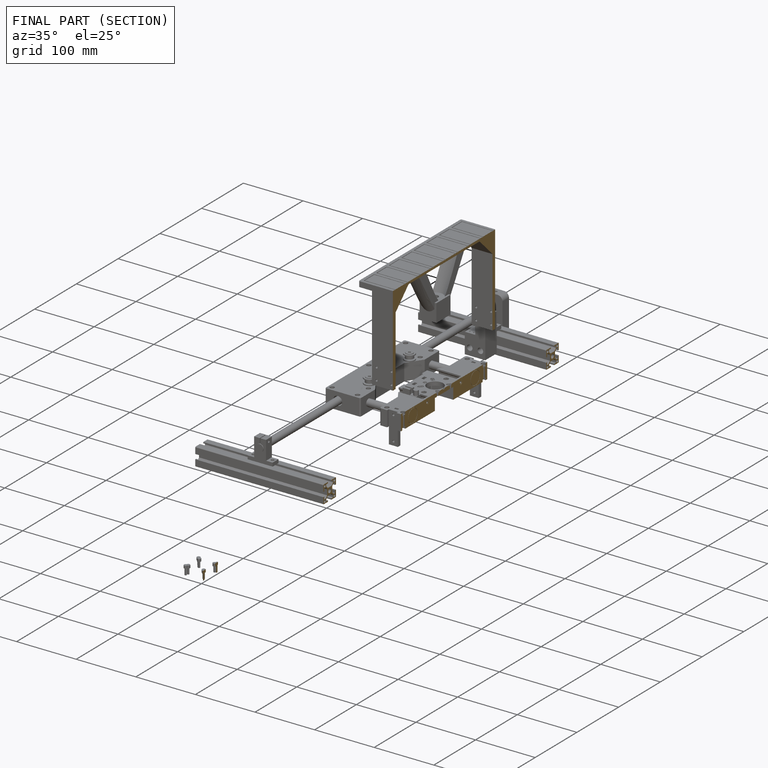
[diagram: finished part — half-section view (interior)]
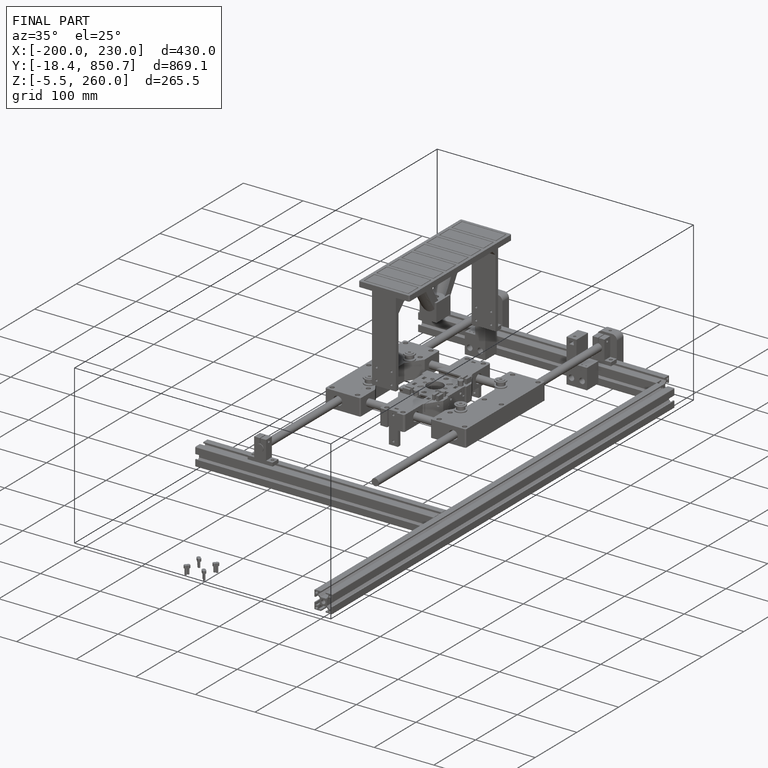
[diagram: finished part — iso view with bounding-box wireframe]
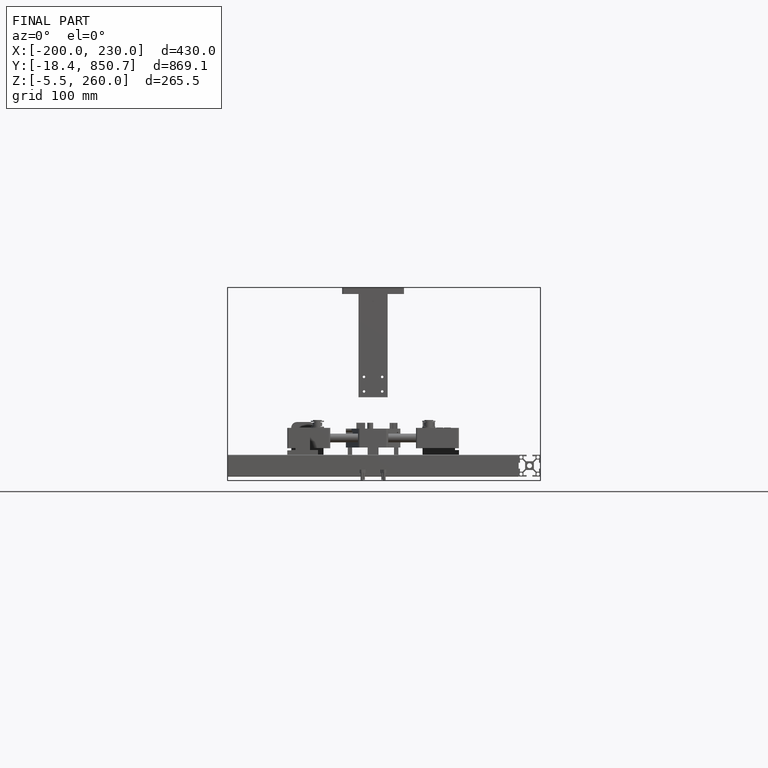
[diagram: finished part — front view with bounding-box wireframe]
